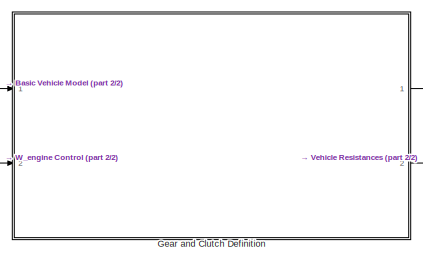
[diagram: root canvas - part 1/2, top right region]
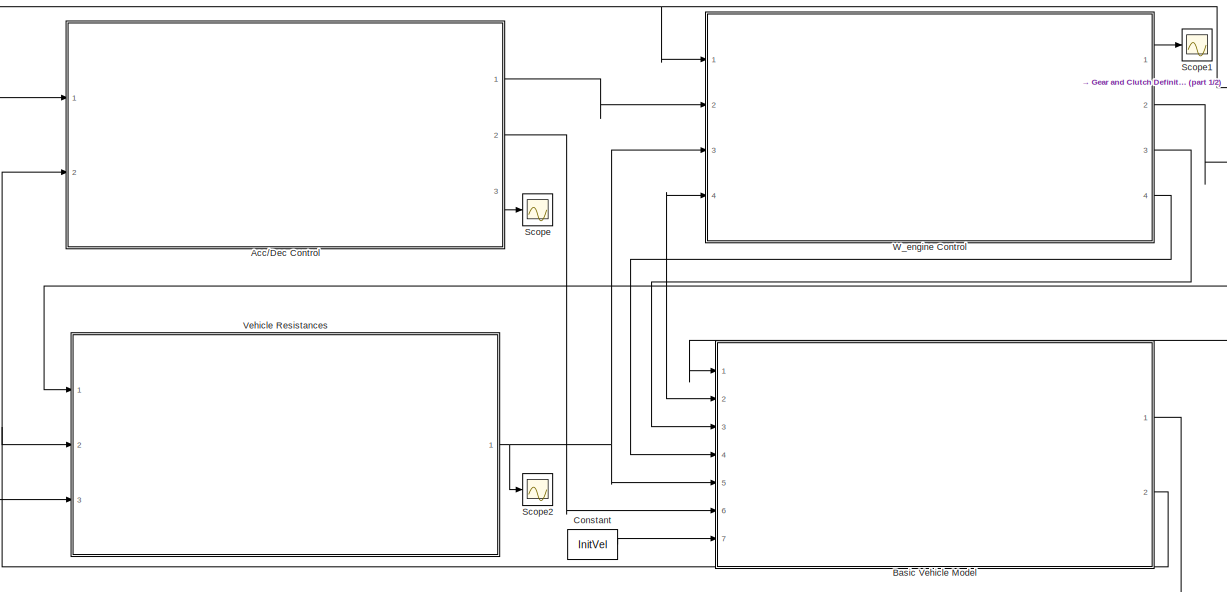
[diagram: root canvas - part 2/2, center side, full height]
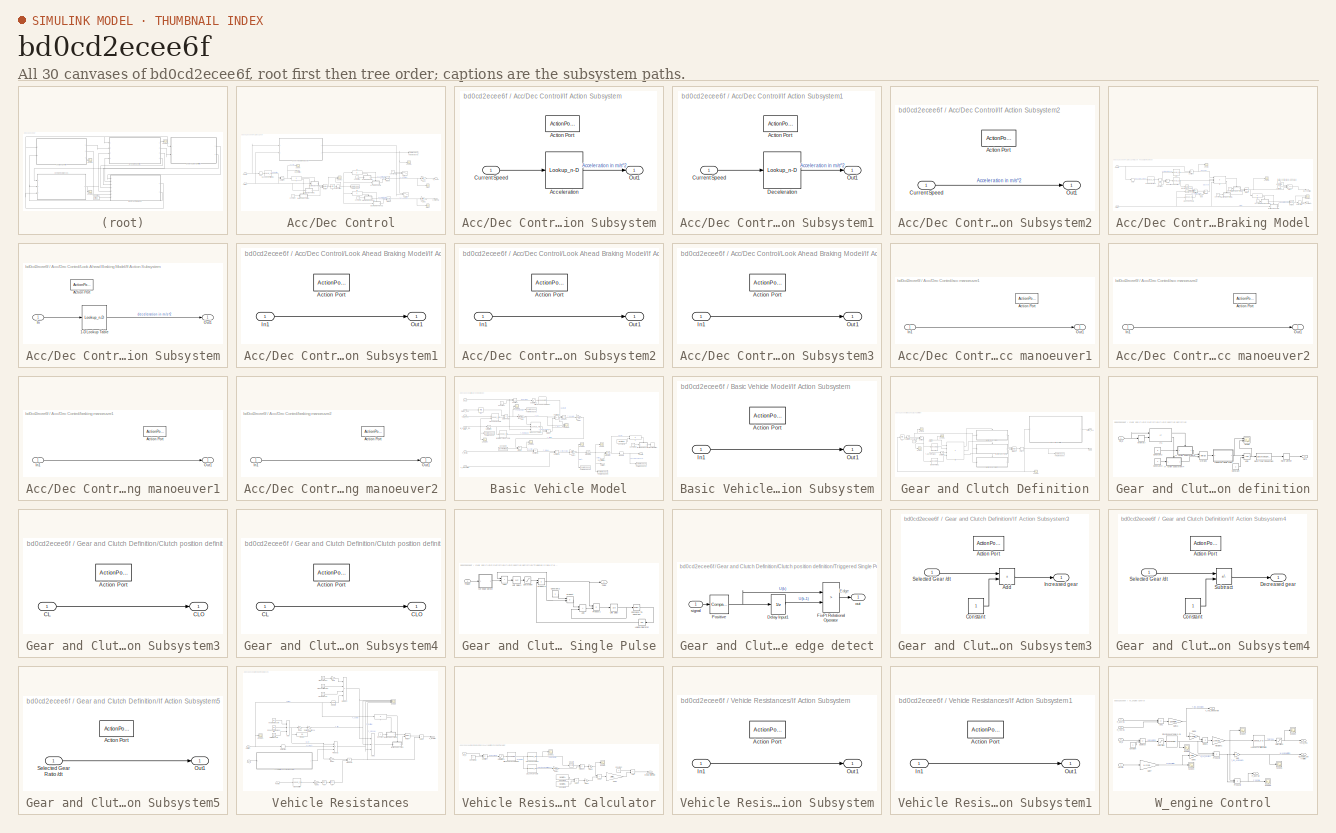
[diagram: thumbnail index - all 30 canvases of the model, root first then tree order]
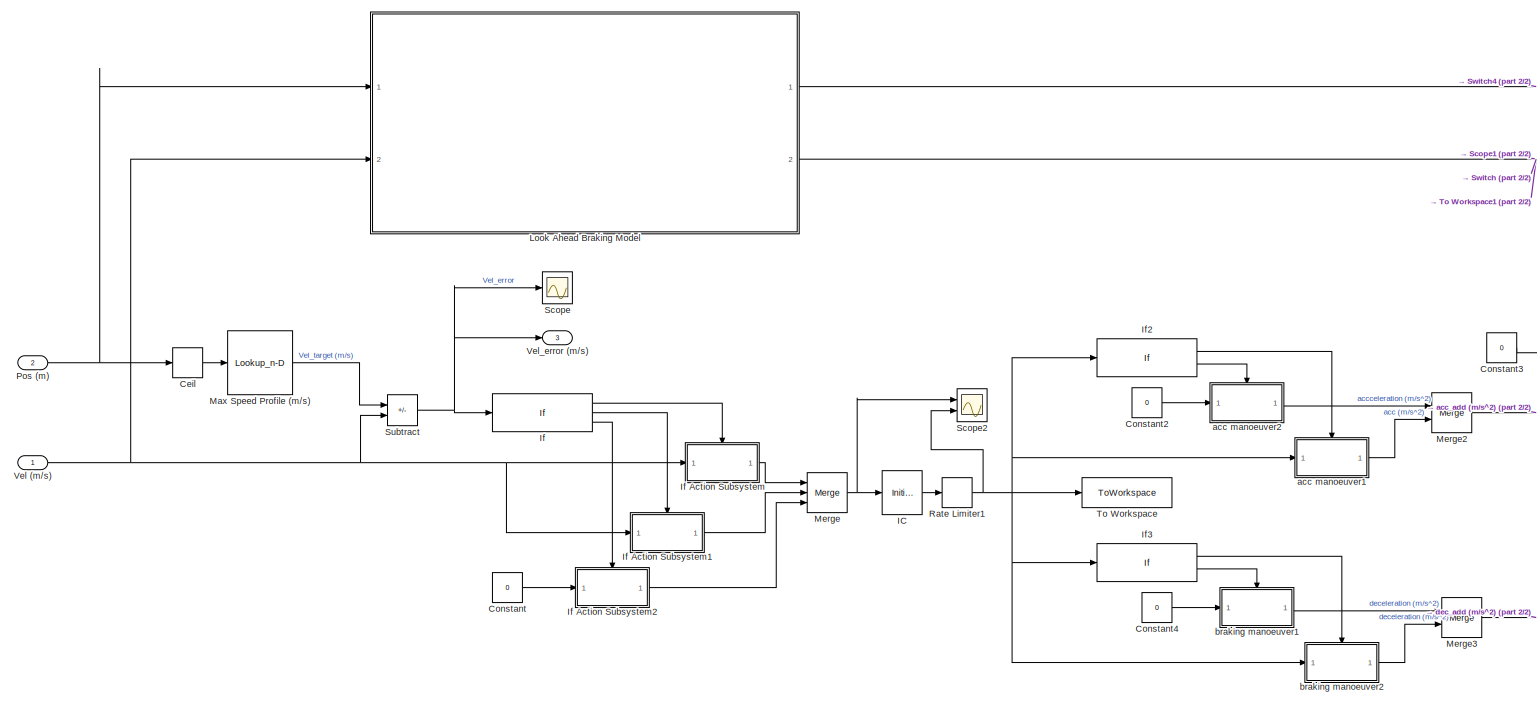
[diagram: Acc/Dec Control - part 1/2, most of the canvas]
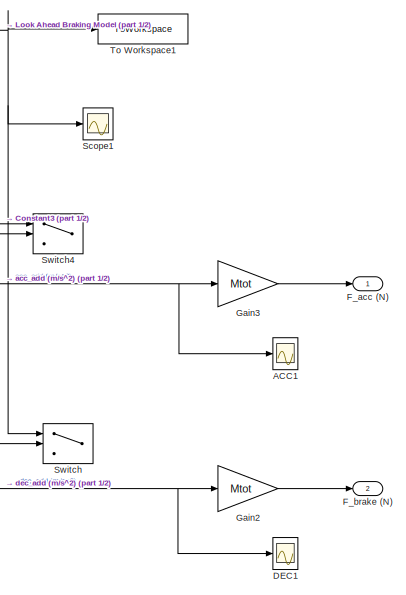
[diagram: Acc/Dec Control - part 2/2, right side, full height]
MODEL slx_bd0cd2ecee6f
KIND model
CONFIG AbsTol = auto
CONFIG EnableMultiTasking = off
CONFIG FixedStep = dt
CONFIG MaxStep = auto
CONFIG MinStep = auto
CONFIG RelTol = 1e-3
CONFIG SampleTimeConstraint = Unconstrained
CONFIG SolverName = FixedStepAuto
CONFIG StartTime = 0.0
CONFIG StopTime = 300
BLOCK [SubSystem] Acc//Dec Control
  Ports = [2, 3]
  RequestExecContextInheritance = off
BLOCK [Scope] Acc//Dec Control/ACC1
  Floating = off
  NumInputPorts = 1
  Ports = [1]
  ScopeSpecificationString = Simulink.scopes.TimeScopeBlockCfg('CurrentConfiguration', extmgr.ConfigurationSet(extmgr.Configuration('Core','General UI',true),extmgr.Configuration('Core','Source UI',true),extmgr.Configuration('Sources','WiredSimulink',true,'DataLoggingVariableName','ScopeData1'),extmgr.Configuration('Visuals','Time Domain',true,'SerializedDisplays',{struct('MinYLimReal','-0.125','MaxYLimReal','1.125','YLabelRe...<+1392ch>
BLOCK [Rounding] Acc//Dec Control/Ceil
  Operator = ceil
BLOCK [Constant] Acc//Dec Control/Constant
  Value = 0
BLOCK [Constant] Acc//Dec Control/Constant2
  Value = 0
BLOCK [Constant] Acc//Dec Control/Constant3
  Commented = on
  Value = 0
BLOCK [Constant] Acc//Dec Control/Constant4
  Value = 0
BLOCK [Scope] Acc//Dec Control/DEC1
  Floating = off
  NumInputPorts = 1
  Ports = [1]
  ScopeSpecificationString = Simulink.scopes.TimeScopeBlockCfg('CurrentConfiguration', extmgr.ConfigurationSet(extmgr.Configuration('Core','General UI',true),extmgr.Configuration('Core','Source UI',true),extmgr.Configuration('Sources','WiredSimulink',true,'DataLoggingVariableName','ScopeData2'),extmgr.Configuration('Visuals','Time Domain',true,'SerializedDisplays',{struct('MinYLimReal','-0.225','MaxYLimReal','0.025','YLabelRe...<+1391ch>
BLOCK [Outport] Acc//Dec Control/F_acc (N)
BLOCK [Outport] Acc//Dec Control/F_brake (N)
  Port = 2
BLOCK [Gain] Acc//Dec Control/Gain2
  Gain = Mtot
BLOCK [Gain] Acc//Dec Control/Gain3
  Gain = Mtot
BLOCK [InitialCondition] Acc//Dec Control/IC
  Value = 0
BLOCK [If] Acc//Dec Control/If
  ElseIfExpressions = u1 < 0
  Ports = [1, 3]
BLOCK [SubSystem] Acc//Dec Control/If Action Subsystem
  Ports = [1, 1, 0, 0, 0, 0, 0, 1]
  RequestExecContextInheritance = off
  TreatAsAtomicUnit = on
BLOCK [Lookup_n-D] Acc//Dec Control/If Action Subsystem/Acceleration
  BreakpointsForDimension1 = AccLim(:,1)
  InputPortMap = u0
  InternalRulePriority = Speed
  NumberOfTableDimensions = 1
  Ports = [1, 1]
  RndMeth = Simplest
  Table = AccLim(:,2)
BLOCK [ActionPort] Acc//Dec Control/If Action Subsystem/Action Port
  ActionPortLabel = if(u1 > 0)
BLOCK [Inport] Acc//Dec Control/If Action Subsystem/Current Speed
BLOCK [Outport] Acc//Dec Control/If Action Subsystem/Out1
BLOCK [SubSystem] Acc//Dec Control/If Action Subsystem1
  Ports = [1, 1, 0, 0, 0, 0, 0, 1]
  RequestExecContextInheritance = off
  TreatAsAtomicUnit = on
BLOCK [ActionPort] Acc//Dec Control/If Action Subsystem1/Action Port
  ActionPortLabel = elseif(u1 < 0)
BLOCK [Inport] Acc//Dec Control/If Action Subsystem1/Current Speed
BLOCK [Lookup_n-D] Acc//Dec Control/If Action Subsystem1/Deceleration
  BreakpointsForDimension1 = AccLim(:,1)
  InputPortMap = u0
  InternalRulePriority = Speed
  NumberOfTableDimensions = 1
  Ports = [1, 1]
  RndMeth = Simplest
  Table = AccLim(:,3)
BLOCK [Outport] Acc//Dec Control/If Action Subsystem1/Out1
BLOCK [SubSystem] Acc//Dec Control/If Action Subsystem2
  Ports = [1, 1, 0, 0, 0, 0, 0, 1]
  RequestExecContextInheritance = off
  TreatAsAtomicUnit = on
BLOCK [ActionPort] Acc//Dec Control/If Action Subsystem2/Action Port
  ActionPortLabel = else
BLOCK [Inport] Acc//Dec Control/If Action Subsystem2/Current Speed
BLOCK [Outport] Acc//Dec Control/If Action Subsystem2/Out1
BLOCK [If] Acc//Dec Control/If2
  Ports = [1, 2]
BLOCK [If] Acc//Dec Control/If3
  IfExpression = u1 < 0
  Ports = [1, 2]
BLOCK [SubSystem] Acc//Dec Control/Look Ahead Braking Model
  Commented = on
  Ports = [2, 2]
  RequestExecContextInheritance = off
BLOCK [Lookup_n-D] Acc//Dec Control/Look Ahead Braking Model/1-D Lookup Table
  BreakpointsForDimension1 = AccLim(:,1)
  InputPortMap = u0
  InternalRulePriority = Speed
  NumberOfTableDimensions = 1
  Ports = [1, 1]
  RndMeth = Simplest
  Table = AccLim(:,3)
BLOCK [Sum] Acc//Dec Control/Look Ahead Braking Model/Add3
  IconShape = rectangular
  Ports = [2, 1]
BLOCK [Rounding] Acc//Dec Control/Look Ahead Braking Model/Ceil
  Operator = ceil
BLOCK [Rounding] Acc//Dec Control/Look Ahead Braking Model/Ceil1
  Operator = ceil
BLOCK [Constant] Acc//Dec Control/Look Ahead Braking Model/Constant
BLOCK [Constant] Acc//Dec Control/Look Ahead Braking Model/Constant1
  Value = 0
BLOCK [Constant] Acc//Dec Control/Look Ahead Braking Model/Constant2
BLOCK [Constant] Acc//Dec Control/Look Ahead Braking Model/Constant3
  Value = 0
BLOCK [Constant] Acc//Dec Control/Look Ahead Braking Model/Constant5
  Value = 0
BLOCK [Outport] Acc//Dec Control/Look Ahead Braking Model/Dec_Override
BLOCK [Product] Acc//Dec Control/Look Ahead Braking Model/Divide
  Inputs = */
  Ports = [2, 1]
BLOCK [Gain] Acc//Dec Control/Look Ahead Braking Model/Gain
  Gain = 2
BLOCK [SubSystem] Acc//Dec Control/Look Ahead Braking Model/If Action Subsystem
  Ports = [1, 1, 0, 0, 0, 0, 0, 1]
  RequestExecContextInheritance = off
  TreatAsAtomicUnit = on
BLOCK [Lookup_n-D] Acc//Dec Control/Look Ahead Braking Model/If Action Subsystem/1-D Lookup Table
  BreakpointsForDimension1 = AccLim(:,1)
  InputPortMap = u0
  InternalRulePriority = Speed
  NumberOfTableDimensions = 1
  Ports = [1, 1]
  RndMeth = Simplest
  Table = AccLim(:,3)
BLOCK [ActionPort] Acc//Dec Control/Look Ahead Braking Model/If Action Subsystem/Action Port
BLOCK [Inport] Acc//Dec Control/Look Ahead Braking Model/If Action Subsystem/In
BLOCK [Outport] Acc//Dec Control/Look Ahead Braking Model/If Action Subsystem/Out1
BLOCK [SubSystem] Acc//Dec Control/Look Ahead Braking Model/If Action Subsystem1
  Ports = [1, 1, 0, 0, 0, 0, 0, 1]
  RequestExecContextInheritance = off
  TreatAsAtomicUnit = on
BLOCK [ActionPort] Acc//Dec Control/Look Ahead Braking Model/If Action Subsystem1/Action Port
BLOCK [Inport] Acc//Dec Control/Look Ahead Braking Model/If Action Subsystem1/In1
BLOCK [Outport] Acc//Dec Control/Look Ahead Braking Model/If Action Subsystem1/Out1
BLOCK [SubSystem] Acc//Dec Control/Look Ahead Braking Model/If Action Subsystem2
  Ports = [1, 1, 0, 0, 0, 0, 0, 1]
  RequestExecContextInheritance = off
  TreatAsAtomicUnit = on
BLOCK [ActionPort] Acc//Dec Control/Look Ahead Braking Model/If Action Subsystem2/Action Port
BLOCK [Inport] Acc//Dec Control/Look Ahead Braking Model/If Action Subsystem2/In1
BLOCK [Outport] Acc//Dec Control/Look Ahead Braking Model/If Action Subsystem2/Out1
BLOCK [SubSystem] Acc//Dec Control/Look Ahead Braking Model/If Action Subsystem3
  Ports = [1, 1, 0, 0, 0, 0, 0, 1]
  RequestExecContextInheritance = off
  TreatAsAtomicUnit = on
BLOCK [ActionPort] Acc//Dec Control/Look Ahead Braking Model/If Action Subsystem3/Action Port
BLOCK [Inport] Acc//Dec Control/Look Ahead Braking Model/If Action Subsystem3/In1
BLOCK [Outport] Acc//Dec Control/Look Ahead Braking Model/If Action Subsystem3/Out1
BLOCK [If] Acc//Dec Control/Look Ahead Braking Model/If1
  IfExpression = u1 <= u2 & u3 < u4
  NumInputs = 4
  Ports = [4, 2]
BLOCK [If] Acc//Dec Control/Look Ahead Braking Model/If2
  Ports = [1, 2]
BLOCK [Math] Acc//Dec Control/Look Ahead Braking Model/Magnitude Squared
  Operator = square
  Ports = [1, 1]
BLOCK [Math] Acc//Dec Control/Look Ahead Braking Model/Magnitude Squared1
  Operator = square
  Ports = [1, 1]
BLOCK [Merge] Acc//Dec Control/Look Ahead Braking Model/Merge
  Ports = [2, 1]
BLOCK [Merge] Acc//Dec Control/Look Ahead Braking Model/Merge1
  Ports = [2, 1]
BLOCK [Inport] Acc//Dec Control/Look Ahead Braking Model/Pos (m)
BLOCK [RateLimiter] Acc//Dec Control/Look Ahead Braking Model/Rate Limiter
  SampleTimeMode = inherited
BLOCK [Lookup_n-D] Acc//Dec Control/Look Ahead Braking Model/SCP
  BreakpointsForDimension1 = SegNo
  BreakpointsForDimension2 = G1Inprpm
  InputPortMap = u0
  InternalRulePriority = Speed
  InterpMethod = Linear Lagrange
  NumberOfTableDimensions = 1
  Ports = [1, 1]
  RndMeth = Simplest
  Table = CovDist
BLOCK [Scope] Acc//Dec Control/Look Ahead Braking Model/Scope
  Floating = off
  NumInputPorts = 1
  Ports = [1]
  ScopeSpecificationString = Simulink.scopes.TimeScopeBlockCfg('CurrentConfiguration', extmgr.ConfigurationSet(extmgr.Configuration('Core','General UI',true),extmgr.Configuration('Core','Source UI',true),extmgr.Configuration('Sources','WiredSimulink',true,'DataLoggingVariableName','ScopeData3'),extmgr.Configuration('Visuals','Time Domain',true,'SerializedDisplays',{struct('MinYLimReal','-28.00000','MaxYLimReal','252.00000','Y...<+1411ch>
BLOCK [Scope] Acc//Dec Control/Look Ahead Braking Model/Scope1
  Floating = off
  NumInputPorts = 2
  Ports = [2]
  ScopeSpecificationString = Simulink.scopes.TimeScopeBlockCfg('CurrentConfiguration', extmgr.ConfigurationSet(extmgr.Configuration('Core','General UI',true),extmgr.Configuration('Core','Source UI',true),extmgr.Configuration('Sources','WiredSimulink',true,'DataLoggingVariableName','ScopeData3'),extmgr.Configuration('Visuals','Time Domain',true,'SerializedDisplays',{struct('MinYLimReal','-1.125','MaxYLimReal','0.125','YLabelRe...<+1443ch>
BLOCK [Scope] Acc//Dec Control/Look Ahead Braking Model/Scope2
  Floating = off
  NumInputPorts = 1
  Ports = [1]
  ScopeSpecificationString = Simulink.scopes.TimeScopeBlockCfg('CurrentConfiguration', extmgr.ConfigurationSet(extmgr.Configuration('Core','General UI',true),extmgr.Configuration('Core','Source UI',true),extmgr.Configuration('Sources','WiredSimulink',true,'DataLoggingVariableName','ScopeData33'),extmgr.Configuration('Visuals','Time Domain',true,'SerializedDisplays',{struct('MinYLimReal','-0.125','MaxYLimReal','1.125','YLabelR...<+1353ch>
BLOCK [Lookup_n-D] Acc//Dec Control/Look Ahead Braking Model/Segment number
  BreakpointsForDimension1 = CovDist
  BreakpointsForDimension2 = G1Inprpm
  InputPortMap = u0
  InternalRulePriority = Speed
  InterpMethod = Linear Lagrange
  NumberOfTableDimensions = 1
  Ports = [1, 1]
  RndMeth = Simplest
  Table = SegNo
BLOCK [Sum] Acc//Dec Control/Look Ahead Braking Model/Subtract
  IconShape = rectangular
  Inputs = -+
  Ports = [2, 1]
BLOCK [Sum] Acc//Dec Control/Look Ahead Braking Model/Subtract1
  IconShape = rectangular
  Inputs = +-
  Ports = [2, 1]
BLOCK [Switch] Acc//Dec Control/Look Ahead Braking Model/Switch
  Criteria = u2 > Threshold
  InputSameDT = off
  SaturateOnIntegerOverflow = off
BLOCK [Inport] Acc//Dec Control/Look Ahead Braking Model/Vel (m//s)
  Port = 2
BLOCK [Constant] Acc//Dec Control/Look Ahead Braking Model/control val
  NameLocation = left
BLOCK [Outport] Acc//Dec Control/Look Ahead Braking Model/dec_add (m//s^2)
  Port = 2
BLOCK [Lookup_n-D] Acc//Dec Control/Look Ahead Braking Model/upcoming speed (m//s)
  BreakpointsForDimension1 = SegNo
  BreakpointsForDimension2 = G1Inprpm
  InputPortMap = u0
  InternalRulePriority = Speed
  InterpMethod = Linear Lagrange
  NumberOfTableDimensions = 1
  Ports = [1, 1]
  RndMeth = Simplest
  Table = SegSPLatinmps
BLOCK [Lookup_n-D] Acc//Dec Control/Max Speed Profile (m//s)
  BreakpointsForDimension1 = [1:length(MaxSpeedProfile)]
  BreakpointsForDimension2 = G1Inprpm
  InputPortMap = u0
  InternalRulePriority = Speed
  InterpMethod = Linear Lagrange
  NumberOfTableDimensions = 1
  Ports = [1, 1]
  RndMeth = Simplest
  Table = MaxSpeedProfile
BLOCK [Merge] Acc//Dec Control/Merge
  Inputs = 3
  Ports = [3, 1]
BLOCK [Merge] Acc//Dec Control/Merge2
  Ports = [2, 1]
BLOCK [Merge] Acc//Dec Control/Merge3
  Ports = [2, 1]
BLOCK [Inport] Acc//Dec Control/Pos (m)
  Port = 2
BLOCK [RateLimiter] Acc//Dec Control/Rate Limiter1
  RisingSlewLimit = 0.5
  SampleTimeMode = inherited
BLOCK [Scope] Acc//Dec Control/Scope
  Floating = off
  NumInputPorts = 1
  Ports = [1]
  ScopeSpecificationString = Simulink.scopes.TimeScopeBlockCfg('CurrentConfiguration', extmgr.ConfigurationSet(extmgr.Configuration('Core','General UI',true),extmgr.Configuration('Core','Source UI',true),extmgr.Configuration('Sources','WiredSimulink',true,'DataLoggingVariableName','ScopeData18'),extmgr.Configuration('Visuals','Time Domain',true,'SerializedDisplays',{struct('MinYLimReal','13.09283','MaxYLimReal','14.72696','YL...<+1394ch>
BLOCK [Scope] Acc//Dec Control/Scope1
  Commented = on
  Floating = off
  NumInputPorts = 1
  Ports = [1]
  ScopeSpecificationString = Simulink.scopes.TimeScopeBlockCfg('CurrentConfiguration', extmgr.ConfigurationSet(extmgr.Configuration('Core','General UI',true),extmgr.Configuration('Core','Source UI',true),extmgr.Configuration('Sources','WiredSimulink',true,'DataLoggingVariableName','ScopeData7'),extmgr.Configuration('Visuals','Time Domain',true,'SerializedDisplays',{struct('MinYLimReal','-1.125','MaxYLimReal','0.125','YLabelRe...<+1373ch>
BLOCK [Scope] Acc//Dec Control/Scope2
  Floating = off
  NumInputPorts = 2
  Ports = [2]
  ScopeSpecificationString = Simulink.scopes.TimeScopeBlockCfg('CurrentConfiguration', extmgr.ConfigurationSet(extmgr.Configuration('Core','General UI',true),extmgr.Configuration('Core','Source UI',true),extmgr.Configuration('Sources','WiredSimulink',true,'DataLoggingVariableName','ScopeData1'),extmgr.Configuration('Visuals','Time Domain',true,'SerializedDisplays',{struct('MinYLimReal','-1.25','MaxYLimReal','1.25','YLabelReal...<+1437ch>
BLOCK [Sum] Acc//Dec Control/Subtract
  IconShape = rectangular
  Inputs = +-
  Ports = [2, 1]
BLOCK [Switch] Acc//Dec Control/Switch
  Commented = on
  Criteria = u2 > Threshold
  InputSameDT = off
  SaturateOnIntegerOverflow = off
BLOCK [Switch] Acc//Dec Control/Switch4
  Commented = on
  Criteria = u2 > Threshold
  InputSameDT = off
  SaturateOnIntegerOverflow = off
BLOCK [ToWorkspace] Acc//Dec Control/To Workspace
  FixptAsFi = on
  MaxDataPoints = inf
  Ports = [1]
  SampleTime = -1
  SaveFormat = Timeseries
  VariableName = AccDec
BLOCK [ToWorkspace] Acc//Dec Control/To Workspace1
  Commented = on
  FixptAsFi = on
  MaxDataPoints = inf
  Ports = [1]
  SampleTime = -1
  SaveFormat = Timeseries
  VariableName = LAB
BLOCK [Inport] Acc//Dec Control/Vel (m//s)
BLOCK [Outport] Acc//Dec Control/Vel_error (m//s)
  Port = 3
BLOCK [SubSystem] Acc//Dec Control/acc manoeuver1
  Ports = [1, 1, 0, 0, 0, 0, 0, 1]
  RequestExecContextInheritance = off
  TreatAsAtomicUnit = on
BLOCK [ActionPort] Acc//Dec Control/acc manoeuver1/Action Port
  ActionPortLabel = if(u1 > 0)
BLOCK [Inport] Acc//Dec Control/acc manoeuver1/In1
BLOCK [Outport] Acc//Dec Control/acc manoeuver1/Out1
BLOCK [SubSystem] Acc//Dec Control/acc manoeuver2
  Ports = [1, 1, 0, 0, 0, 0, 0, 1]
  RequestExecContextInheritance = off
  TreatAsAtomicUnit = on
BLOCK [ActionPort] Acc//Dec Control/acc manoeuver2/Action Port
  ActionPortLabel = else
BLOCK [Inport] Acc//Dec Control/acc manoeuver2/In1
BLOCK [Outport] Acc//Dec Control/acc manoeuver2/Out1
BLOCK [SubSystem] Acc//Dec Control/braking manoeuver1
  Ports = [1, 1, 0, 0, 0, 0, 0, 1]
  RequestExecContextInheritance = off
  TreatAsAtomicUnit = on
BLOCK [ActionPort] Acc//Dec Control/braking manoeuver1/Action Port
  ActionPortLabel = else
BLOCK [Inport] Acc//Dec Control/braking manoeuver1/In1
BLOCK [Outport] Acc//Dec Control/braking manoeuver1/Out1
BLOCK [SubSystem] Acc//Dec Control/braking manoeuver2
  Ports = [1, 1, 0, 0, 0, 0, 0, 1]
  RequestExecContextInheritance = off
  TreatAsAtomicUnit = on
BLOCK [ActionPort] Acc//Dec Control/braking manoeuver2/Action Port
  ActionPortLabel = if(u1 < 0)
BLOCK [Inport] Acc//Dec Control/braking manoeuver2/In1
BLOCK [Outport] Acc//Dec Control/braking manoeuver2/Out1
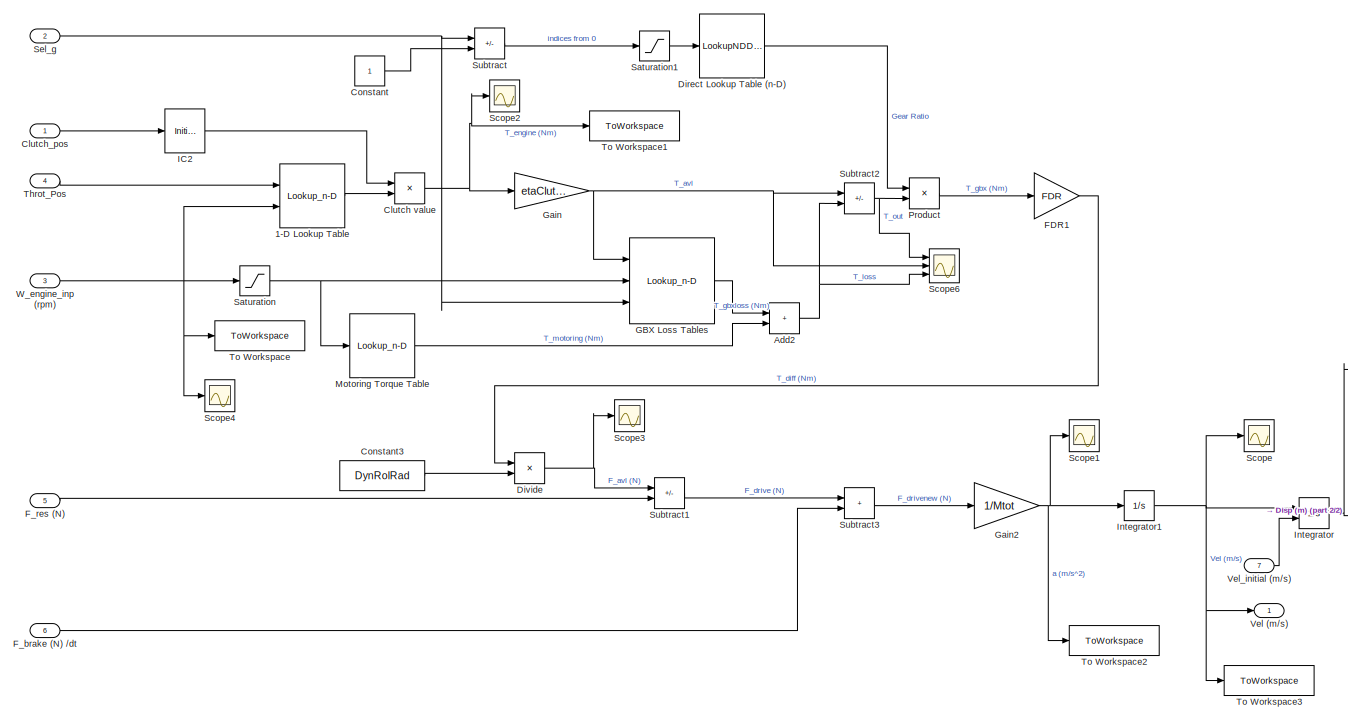
[diagram: Basic Vehicle Model - part 1/2, most of the canvas]
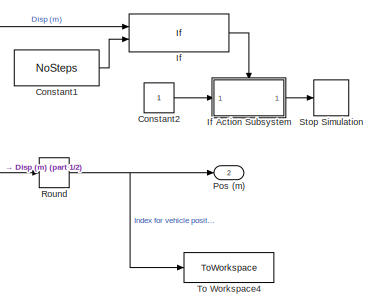
[diagram: Basic Vehicle Model - part 2/2, bottom right region]
BLOCK [SubSystem] Basic Vehicle Model
  Ports = [7, 2]
  RequestExecContextInheritance = off
BLOCK [Lookup_n-D] Basic Vehicle Model/1-D Lookup Table
  BreakpointsForDimension1 = ThrotPos
  BreakpointsForDimension2 = RpmBrkPnt
  InputPortMap = u0,u1
  InternalRulePriority = Speed
  Ports = [2, 1]
  RndMeth = Simplest
  Table = ThrotTableVal
BLOCK [Sum] Basic Vehicle Model/Add2
  IconShape = rectangular
  Ports = [2, 1]
BLOCK [Product] Basic Vehicle Model/Clutch value
  Ports = [2, 1]
BLOCK [Inport] Basic Vehicle Model/Clutch_pos
BLOCK [Constant] Basic Vehicle Model/Constant
BLOCK [Constant] Basic Vehicle Model/Constant1
  Value = NoSteps
BLOCK [Constant] Basic Vehicle Model/Constant2
BLOCK [Constant] Basic Vehicle Model/Constant3
  Value = DynRolRad
BLOCK [LookupNDDirect] Basic Vehicle Model/Direct Lookup Table (n-D)
  NumberOfTableDimensions = 1
  Ports = [1, 1]
  Table = GRa
BLOCK [Product] Basic Vehicle Model/Divide
  Inputs = */
  Ports = [2, 1]
BLOCK [Gain] Basic Vehicle Model/FDR1
  Gain = FDR
BLOCK [Inport] Basic Vehicle Model/F_brake (N) //dt
  Port = 6
BLOCK [Inport] Basic Vehicle Model/F_res (N)
  Port = 5
BLOCK [Lookup_n-D] Basic Vehicle Model/GBX Loss Tables
  BreakpointsForDimension1 = GInpTor
  BreakpointsForDimension2 = GInprpm
  BreakpointsForDimension3 = GearNo
  InputPortMap = u0,u1,u2
  InternalRulePriority = Speed
  InterpMethod = Linear Lagrange
  NumberOfTableDimensions = 3
  Ports = [3, 1]
  RndMeth = Simplest
  Table = GTorLoss
BLOCK [Gain] Basic Vehicle Model/Gain
  Gain = etaClutch
BLOCK [Gain] Basic Vehicle Model/Gain2
  Gain = 1/Mtot
BLOCK [InitialCondition] Basic Vehicle Model/IC2
BLOCK [If] Basic Vehicle Model/If
  IfExpression = u1 > u2
  NumInputs = 2
  Ports = [2, 1]
  ShowElse = off
BLOCK [SubSystem] Basic Vehicle Model/If Action Subsystem
  Ports = [1, 1, 0, 0, 0, 0, 0, 1]
  RequestExecContextInheritance = off
  TreatAsAtomicUnit = on
BLOCK [ActionPort] Basic Vehicle Model/If Action Subsystem/Action Port
  ActionPortLabel = if(u1 > u2)
BLOCK [Inport] Basic Vehicle Model/If Action Subsystem/In1
BLOCK [Outport] Basic Vehicle Model/If Action Subsystem/Out1
BLOCK [Integrator] Basic Vehicle Model/Integrator
  ContinuousStateAttributes = 'velocity'
  InitialConditionSource = external
  Ports = [2, 1]
BLOCK [Integrator] Basic Vehicle Model/Integrator1
  ContinuousStateAttributes = 'acceleration'
  Ports = [1, 1]
BLOCK [Lookup_n-D] Basic Vehicle Model/Motoring Torque Table
  BreakpointsForDimension1 = EngineRpm
  BreakpointsForDimension2 = G1Inprpm
  InputPortMap = u0
  InternalRulePriority = Speed
  InterpMethod = Linear Lagrange
  NumberOfTableDimensions = 1
  Ports = [1, 1]
  RndMeth = Simplest
  Table = MotoringTor
BLOCK [Outport] Basic Vehicle Model/Pos (m)
  Port = 2
BLOCK [Product] Basic Vehicle Model/Product
  Ports = [2, 1]
BLOCK [Rounding] Basic Vehicle Model/Round
  Operator = ceil
BLOCK [Saturate] Basic Vehicle Model/Saturation
  LowerLimit = 0
  UpperLimit = inf
BLOCK [Saturate] Basic Vehicle Model/Saturation1
  LowerLimit = 0
  UpperLimit = inf
BLOCK [Scope] Basic Vehicle Model/Scope
  Floating = off
  NumInputPorts = 1
  Ports = [1]
  ScopeSpecificationString = Simulink.scopes.TimeScopeBlockCfg('CurrentConfiguration', extmgr.ConfigurationSet(extmgr.Configuration('Core','General UI',true),extmgr.Configuration('Core','Source UI',true),extmgr.Configuration('Sources','WiredSimulink',true,'DataLoggingVariableName','ScopeData2'),extmgr.Configuration('Visuals','Time Domain',true,'SerializedDisplays',{struct('MinYLimReal','-0.09884','MaxYLimReal','-0.03335','YLa...<+1389ch>
BLOCK [Scope] Basic Vehicle Model/Scope1
  Floating = off
  NumInputPorts = 1
  Ports = [1]
  ScopeSpecificationString = Simulink.scopes.TimeScopeBlockCfg('CurrentConfiguration', extmgr.ConfigurationSet(extmgr.Configuration('Core','General UI',true),extmgr.Configuration('Core','Source UI',true),extmgr.Configuration('Sources','WiredSimulink',true,'DataLoggingVariableName','ScopeData3'),extmgr.Configuration('Visuals','Time Domain',true,'SerializedDisplays',{struct('MinYLimReal','-0.11638','MaxYLimReal','-0.02998','YLa...<+1416ch>
BLOCK [Scope] Basic Vehicle Model/Scope2
  Floating = off
  NumInputPorts = 1
  Ports = [1]
  ScopeSpecificationString = Simulink.scopes.TimeScopeBlockCfg('CurrentConfiguration', extmgr.ConfigurationSet(extmgr.Configuration('Core','General UI',true),extmgr.Configuration('Core','Source UI',true),extmgr.Configuration('Sources','WiredSimulink',true,'DataLoggingVariableName','ScopeData4'),extmgr.Configuration('Visuals','Time Domain',true,'SerializedDisplays',{struct('MinYLimReal','-25.78799','MaxYLimReal','232.09192','Y...<+1382ch>
BLOCK [Scope] Basic Vehicle Model/Scope3
  Floating = off
  NumInputPorts = 1
  Ports = [1]
  ScopeSpecificationString = Simulink.scopes.TimeScopeBlockCfg('CurrentConfiguration', extmgr.ConfigurationSet(extmgr.Configuration('Core','General UI',true),extmgr.Configuration('Core','Source UI',true),extmgr.Configuration('Sources','WiredSimulink',true,'DataLoggingVariableName','ScopeData5'),extmgr.Configuration('Visuals','Time Domain',true,'SerializedDisplays',{struct('MinYLimReal','-521.63787','MaxYLimReal','1495.34209',...<+1405ch>
BLOCK [Scope] Basic Vehicle Model/Scope4
  Floating = off
  NumInputPorts = 1
  Ports = [1]
  ScopeSpecificationString = Simulink.scopes.TimeScopeBlockCfg('CurrentConfiguration', extmgr.ConfigurationSet(extmgr.Configuration('Core','General UI',true),extmgr.Configuration('Core','Source UI',true),extmgr.Configuration('Sources','WiredSimulink',true,'DataLoggingVariableName','ScopeData6'),extmgr.Configuration('Visuals','Time Domain',true,'SerializedDisplays',{struct('MinYLimReal','-143.22715','MaxYLimReal','126.0272','Y...<+1400ch>
BLOCK [Scope] Basic Vehicle Model/Scope6
  Floating = off
  NumInputPorts = 3
  Ports = [3]
  ScopeSpecificationString = Simulink.scopes.TimeScopeBlockCfg('CurrentConfiguration', extmgr.ConfigurationSet(extmgr.Configuration('Core','General UI',true),extmgr.Configuration('Core','Source UI',true),extmgr.Configuration('Sources','WiredSimulink',true,'DataLoggingVariableName','ScopeData12'),extmgr.Configuration('Visuals','Time Domain',true,'SerializedDisplays',{struct('MinYLimReal','-12.9903','MaxYLimReal','262.87819','Y...<+1527ch>
BLOCK [Inport] Basic Vehicle Model/Sel_g
  Port = 2
BLOCK [Stop] Basic Vehicle Model/Stop Simulation
BLOCK [Sum] Basic Vehicle Model/Subtract
  IconShape = rectangular
  Inputs = +-
  Ports = [2, 1]
BLOCK [Sum] Basic Vehicle Model/Subtract1
  IconShape = rectangular
  Inputs = +-
  Ports = [2, 1]
BLOCK [Sum] Basic Vehicle Model/Subtract2
  IconShape = rectangular
  Inputs = +-
  Ports = [2, 1]
BLOCK [Sum] Basic Vehicle Model/Subtract3
  IconShape = rectangular
  Ports = [2, 1]
BLOCK [Inport] Basic Vehicle Model/Throt_Pos
  Port = 4
BLOCK [ToWorkspace] Basic Vehicle Model/To Workspace
  FixptAsFi = on
  MaxDataPoints = inf
  Ports = [1]
  SampleTime = -1
  SaveFormat = Timeseries
  VariableName = W_engine_inp
BLOCK [ToWorkspace] Basic Vehicle Model/To Workspace1
  FixptAsFi = on
  MaxDataPoints = inf
  Ports = [1]
  SampleTime = -1
  SaveFormat = Timeseries
  VariableName = T_req
BLOCK [ToWorkspace] Basic Vehicle Model/To Workspace2
  FixptAsFi = on
  MaxDataPoints = inf
  Ports = [1]
  SampleTime = -1
  SaveFormat = Timeseries
  VariableName = acc
BLOCK [ToWorkspace] Basic Vehicle Model/To Workspace3
  FixptAsFi = on
  MaxDataPoints = inf
  Ports = [1]
  SampleTime = -1
  SaveFormat = Timeseries
  VariableName = Vel
BLOCK [ToWorkspace] Basic Vehicle Model/To Workspace4
  FixptAsFi = on
  MaxDataPoints = inf
  Ports = [1]
  SampleTime = -1
  SaveFormat = Timeseries
  VariableName = Pos
BLOCK [Outport] Basic Vehicle Model/Vel (m//s)
BLOCK [Inport] Basic Vehicle Model/Vel_initial (m//s)
  Port = 7
BLOCK [Inport] Basic Vehicle Model/W_engine_inp (rpm)
  Port = 3
BLOCK [Constant] Constant
  Value = InitVel
BLOCK [SubSystem] Gear and Clutch Definition
  Ports = [2, 2]
  RequestExecContextInheritance = off
BLOCK [SubSystem] Gear and Clutch Definition/Clutch position definition
  Ports = [1, 1]
  RequestExecContextInheritance = off
BLOCK [Constant] Gear and Clutch Definition/Clutch position definition/Constant
BLOCK [Constant] Gear and Clutch Definition/Clutch position definition/Constant2
  Value = 0
BLOCK [Constant] Gear and Clutch Definition/Clutch position definition/Constant3
BLOCK [DataTypeConversion] Gear and Clutch Definition/Clutch position definition/Data Type Conversion
  OutDataTypeStr = double
  RndMeth = Floor
  SaturateOnIntegerOverflow = off
BLOCK [SubSystem] Gear and Clutch Definition/Clutch position definition/If Action Subsystem3
  Ports = [1, 1, 0, 0, 0, 0, 0, 1]
  RequestExecContextInheritance = off
  TreatAsAtomicUnit = on
BLOCK [ActionPort] Gear and Clutch Definition/Clutch position definition/If Action Subsystem3/Action Port
  ActionPortLabel = if(u1 == u2)
BLOCK [Inport] Gear and Clutch Definition/Clutch position definition/If Action Subsystem3/CL
BLOCK [Outport] Gear and Clutch Definition/Clutch position definition/If Action Subsystem3/CLO
BLOCK [SubSystem] Gear and Clutch Definition/Clutch position definition/If Action Subsystem4
  Ports = [1, 1, 0, 0, 0, 0, 0, 1]
  RequestExecContextInheritance = off
  TreatAsAtomicUnit = on
BLOCK [ActionPort] Gear and Clutch Definition/Clutch position definition/If Action Subsystem4/Action Port
  ActionPortLabel = else
BLOCK [Inport] Gear and Clutch Definition/Clutch position definition/If Action Subsystem4/CL
BLOCK [Outport] Gear and Clutch Definition/Clutch position definition/If Action Subsystem4/CLO
BLOCK [If] Gear and Clutch Definition/Clutch position definition/If1
  IfExpression = u1 == u2
  NumInputs = 2
  Ports = [2, 2]
BLOCK [Memory] Gear and Clutch Definition/Clutch position definition/Memory
BLOCK [Merge] Gear and Clutch Definition/Clutch position definition/Merge2
  Ports = [2, 1]
BLOCK [Outport] Gear and Clutch Definition/Clutch position definition/Out1
BLOCK [RateLimiter] Gear and Clutch Definition/Clutch position definition/Rate Limiter
  SampleTimeMode = inherited
BLOCK [Scope] Gear and Clutch Definition/Clutch position definition/Scope
  Floating = off
  NumInputPorts = 2
  Ports = [2]
  ScopeSpecificationString = Simulink.scopes.TimeScopeBlockCfg('CurrentConfiguration', extmgr.ConfigurationSet(extmgr.Configuration('Core','General UI',true),extmgr.Configuration('Core','Source UI',true),extmgr.Configuration('Sources','WiredSimulink',true,'DataLoggingVariableName','ScopeData4'),extmgr.Configuration('Visuals','Time Domain',true,'SerializedDisplays',{struct('MinYLimReal','-0.125','MaxYLimReal','1.125','YLabelRe...<+1375ch>
BLOCK [Inport] Gear and Clutch Definition/Clutch position definition/Sel_g
BLOCK [SubSystem] Gear and Clutch Definition/Clutch position definition/Triggered Single Pulse
  Ports = [1, 1]
  RequestExecContextInheritance = off
  TreatAsAtomicUnit = on
BLOCK [SubSystem] Gear and Clutch Definition/Clutch position definition/Triggered Single Pulse/+ve edge detect
  Ports = [1, 1]
  RequestExecContextInheritance = off
BLOCK [UnitDelay] Gear and Clutch Definition/Clutch position definition/Triggered Single Pulse/+ve edge detect/Delay Input1
  Description = Store in Global RAM
  DisableCoverage = on
  HasFrameUpgradeWarning = on
  SampleTime = -1
BLOCK [RelationalOperator] Gear and Clutch Definition/Clutch position definition/Triggered Single Pulse/+ve edge detect/FixPt Relational Operator
  InputSameDT = off
  Operator = >
  OutDataTypeStr = fixdt(0, 8)
  Ports = [2, 1]
  ZeroCross = off
BLOCK [Reference] Gear and Clutch Definition/Clutch position definition/Triggered Single Pulse/+ve edge detect/Positive  REF=simulink/Logic and Bit
Operations/Compare
To Zero
  Ports = [1, 1]
  SourceBlock = simulink/Logic and Bit\nOperations/Compare\nTo Zero
  SourceProductBaseCode = SL
  SourceType = Compare To Zero
BLOCK [Outport] Gear and Clutch Definition/Clutch position definition/Triggered Single Pulse/+ve edge detect/out
BLOCK [Inport] Gear and Clutch Definition/Clutch position definition/Triggered Single Pulse/+ve edge detect/signal
BLOCK [Sum] Gear and Clutch Definition/Clutch position definition/Triggered Single Pulse/Add
  IconShape = rectangular
  Ports = [2, 1]
BLOCK [Sum] Gear and Clutch Definition/Clutch position definition/Triggered Single Pulse/Add1
  IconShape = rectangular
  Ports = [2, 1]
BLOCK [Reference] Gear and Clutch Definition/Clutch position definition/Triggered Single Pulse/Compare To Constant  REF=simulink/Logic and Bit
Operations/Compare
To Constant
  Ports = [1, 1]
  SourceBlock = simulink/Logic and Bit\nOperations/Compare\nTo Constant
  SourceProductBaseCode = SL
  SourceType = Compare To Constant
BLOCK [Constant] Gear and Clutch Definition/Clutch position definition/Triggered Single Pulse/Constant2
BLOCK [Logic] Gear and Clutch Definition/Clutch position definition/Triggered Single Pulse/Logical Operator
  AllPortsSameDT = off
  Operator = NOT
  OutDataTypeStr = boolean
  Ports = [1, 1]
BLOCK [Product] Gear and Clutch Definition/Clutch position definition/Triggered Single Pulse/Product
  Ports = [2, 1]
  RndMeth = Zero
BLOCK [Product] Gear and Clutch Definition/Clutch position definition/Triggered Single Pulse/Product1
  Ports = [2, 1]
  RndMeth = Zero
BLOCK [Product] Gear and Clutch Definition/Clutch position definition/Triggered Single Pulse/Product3
  Ports = [2, 1]
  RndMeth = Zero
BLOCK [Outport] Gear and Clutch Definition/Clutch position definition/Triggered Single Pulse/Pulse
BLOCK [Saturate] Gear and Clutch Definition/Clutch position definition/Triggered Single Pulse/Saturation
  LowerLimit = 0
  UpperLimit = 1
BLOCK [Inport] Gear and Clutch Definition/Clutch position definition/Triggered Single Pulse/Trigger
BLOCK [UnitDelay] Gear and Clutch Definition/Clutch position definition/Triggered Single Pulse/Unit Delay
  HasFrameUpgradeWarning = on
  SampleTime = -1
BLOCK [UnitDelay] Gear and Clutch Definition/Clutch position definition/Triggered Single Pulse/Unit Delay1
  HasFrameUpgradeWarning = on
  SampleTime = -1
BLOCK [Logic] Gear and Clutch Definition/Clutch position definition/XOR
  AllPortsSameDT = off
  IconShape = distinctive
  Operator = XOR
  OutDataTypeStr = boolean
  Ports = [2, 1]
BLOCK [Outport] Gear and Clutch Definition/Clutch_pos
BLOCK [Constant] Gear and Clutch Definition/Constant1
BLOCK [Delay] Gear and Clutch Definition/Delay2
  DelayLength = 1
  InputPortMap = u0
  Ports = [1, 1]
BLOCK [InitialCondition] Gear and Clutch Definition/IC1
BLOCK [SubSystem] Gear and Clutch Definition/If Action Subsystem3
  Ports = [1, 1, 0, 0, 0, 0, 0, 1]
  RequestExecContextInheritance = off
  TreatAsAtomicUnit = on
BLOCK [ActionPort] Gear and Clutch Definition/If Action Subsystem3/Action Port
  ActionPortLabel = if(u1 >= u2 & u3 < u4)
BLOCK [Sum] Gear and Clutch Definition/If Action Subsystem3/Add
  IconShape = rectangular
  Ports = [2, 1]
BLOCK [Constant] Gear and Clutch Definition/If Action Subsystem3/Constant
BLOCK [Outport] Gear and Clutch Definition/If Action Subsystem3/Increased gear
BLOCK [Inport] Gear and Clutch Definition/If Action Subsystem3/Selected Gear //dt
BLOCK [SubSystem] Gear and Clutch Definition/If Action Subsystem4
  Ports = [1, 1, 0, 0, 0, 0, 0, 1]
  RequestExecContextInheritance = off
  TreatAsAtomicUnit = on
BLOCK [ActionPort] Gear and Clutch Definition/If Action Subsystem4/Action Port
  ActionPortLabel = elseif(u3 >= u4 & u1 < u2)
BLOCK [Constant] Gear and Clutch Definition/If Action Subsystem4/Constant
BLOCK [Outport] Gear and Clutch Definition/If Action Subsystem4/Decreased gear
BLOCK [Inport] Gear and Clutch Definition/If Action Subsystem4/Selected Gear //dt
BLOCK [Sum] Gear and Clutch Definition/If Action Subsystem4/Subtract
  IconShape = rectangular
  Inputs = +-
  Ports = [2, 1]
BLOCK [SubSystem] Gear and Clutch Definition/If Action Subsystem5
  Ports = [1, 1, 0, 0, 0, 0, 0, 1]
  RequestExecContextInheritance = off
  TreatAsAtomicUnit = on
BLOCK [ActionPort] Gear and Clutch Definition/If Action Subsystem5/Action Port
  ActionPortLabel = else
BLOCK [Outport] Gear and Clutch Definition/If Action Subsystem5/Out1
BLOCK [Inport] Gear and Clutch Definition/If Action Subsystem5/Selected Gear Ratio //dt
BLOCK [If] Gear and Clutch Definition/If1
  ElseIfExpressions = u3 >= u4 & u1 < u2
  IfExpression = u1 >= u2 & u3 < u4
  NumInputs = 4
  Ports = [4, 3]
BLOCK [LookupNDDirect] Gear and Clutch Definition/MaxSpinG1
  NumberOfTableDimensions = 1
  Ports = [1, 1]
  Table = MaxSpinG
BLOCK [LookupNDDirect] Gear and Clutch Definition/MaxWhlTorinG1
  NumberOfTableDimensions = 1
  Ports = [1, 1]
  Table = MaxWhlTorinG
BLOCK [Merge] Gear and Clutch Definition/Merge1
  Inputs = 3
  Ports = [3, 1]
BLOCK [Saturate] Gear and Clutch Definition/Saturation2
  LowerLimit = 0
  UpperLimit = max(GNo)
BLOCK [Saturate] Gear and Clutch Definition/Saturation3
  LowerLimit = 0
  UpperLimit = inf
BLOCK [Scope] Gear and Clutch Definition/Scope5
  Floating = off
  NumInputPorts = 1
  Ports = [1]
  ScopeSpecificationString = Simulink.scopes.TimeScopeBlockCfg('CurrentConfiguration', extmgr.ConfigurationSet(extmgr.Configuration('Core','General UI',true),extmgr.Configuration('Core','Source UI',true),extmgr.Configuration('Sources','WiredSimulink',true,'DataLoggingVariableName','ScopeData2'),extmgr.Configuration('Visuals','Time Domain',true,'SerializedDisplays',{struct('MinYLimReal','-0.5','MaxYLimReal','4.5','YLabelReal',...<+1371ch>
BLOCK [Scope] Gear and Clutch Definition/Scope6
  Floating = off
  NumInputPorts = 1
  Ports = [1]
  ScopeSpecificationString = Simulink.scopes.TimeScopeBlockCfg('CurrentConfiguration', extmgr.ConfigurationSet(extmgr.Configuration('Core','General UI',true),extmgr.Configuration('Core','Source UI',true),extmgr.Configuration('Sources','WiredSimulink',true,'DataLoggingVariableName','ScopeData3'),extmgr.Configuration('Visuals','Time Domain',true,'SerializedDisplays',{struct('MinYLimReal','-1.86223','MaxYLimReal','15.69968','YLa...<+1372ch>
BLOCK [Scope] Gear and Clutch Definition/Scope7
  Floating = off
  NumInputPorts = 1
  Ports = [1]
  ScopeSpecificationString = Simulink.scopes.TimeScopeBlockCfg('CurrentConfiguration', extmgr.ConfigurationSet(extmgr.Configuration('Core','General UI',true),extmgr.Configuration('Core','Source UI',true),extmgr.Configuration('Sources','WiredSimulink',true,'DataLoggingVariableName','ScopeData7'),extmgr.Configuration('Visuals','Time Domain',true,'SerializedDisplays',{struct('MinYLimReal','-0.375','MaxYLimReal','3.375','YLabelRe...<+1386ch>
BLOCK [Scope] Gear and Clutch Definition/Scope8
  Floating = off
  NumInputPorts = 1
  Ports = [1]
  ScopeSpecificationString = Simulink.scopes.TimeScopeBlockCfg('CurrentConfiguration', extmgr.ConfigurationSet(extmgr.Configuration('Core','General UI',true),extmgr.Configuration('Core','Source UI',true),extmgr.Configuration('Sources','WiredSimulink',true,'DataLoggingVariableName','ScopeData9'),extmgr.Configuration('Visuals','Time Domain',true,'SerializedDisplays',{struct('MinYLimReal','0.625','MaxYLimReal','4.375','YLabelRea...<+1381ch>
BLOCK [Outport] Gear and Clutch Definition/Sel_g
  Port = 2
BLOCK [Sum] Gear and Clutch Definition/Subtract1
  IconShape = rectangular
  Inputs = +-
  Ports = [2, 1]
BLOCK [Inport] Gear and Clutch Definition/T_req_wheel (Nm)
  Port = 2
BLOCK [ToWorkspace] Gear and Clutch Definition/To Workspace2
  FixptAsFi = on
  MaxDataPoints = inf
  Ports = [1]
  SampleTime = -1
  SaveFormat = Timeseries
  VariableName = Sel_g
BLOCK [Inport] Gear and Clutch Definition/Vel (m//s)
BLOCK [Scope] Scope
  Floating = off
  NumInputPorts = 1
  Ports = [1]
  ScopeSpecificationString = Simulink.scopes.TimeScopeBlockCfg('CurrentConfiguration', extmgr.ConfigurationSet(extmgr.Configuration('Core','General UI',true),extmgr.Configuration('Core','Source UI',true),extmgr.Configuration('Sources','WiredSimulink',true,'DataLoggingVariableName','ScopeData2'),extmgr.Configuration('Visuals','Time Domain',true,'SerializedDisplays',{struct('MinYLimReal','-1.78956','MaxYLimReal','15.72152','YLa...<+1388ch>
BLOCK [Scope] Scope1
  Floating = off
  NumInputPorts = 1
  Ports = [1]
  ScopeSpecificationString = Simulink.scopes.TimeScopeBlockCfg('CurrentConfiguration', extmgr.ConfigurationSet(extmgr.Configuration('Core','General UI',true),extmgr.Configuration('Core','Source UI',true),extmgr.Configuration('Sources','WiredSimulink',true,'DataLoggingVariableName','ScopeData1'),extmgr.Configuration('Visuals','Time Domain',true,'SerializedDisplays',{struct('MinYLimReal','-34.26759','MaxYLimReal','18.57548','YL...<+1410ch>
BLOCK [Scope] Scope2
  Floating = off
  NumInputPorts = 1
  Ports = [1]
  ScopeSpecificationString = Simulink.scopes.TimeScopeBlockCfg('CurrentConfiguration', extmgr.ConfigurationSet(extmgr.Configuration('Core','General UI',true),extmgr.Configuration('Core','Source UI',true),extmgr.Configuration('Sources','WiredSimulink',true,'DataLoggingVariableName','ScopeData7'),extmgr.Configuration('Visuals','Time Domain',true,'SerializedDisplays',{struct('MinYLimReal','-14.14914','MaxYLimReal','66.06312','YL...<+1403ch>
BLOCK [SubSystem] Vehicle Resistances
  Ports = [3, 1]
  RequestExecContextInheritance = off
BLOCK [SubSystem] Vehicle Resistances/Acceleration Constant Calculator
  Ports = [1, 1]
  RequestExecContextInheritance = off
BLOCK [Lookup_n-D] Vehicle Resistances/Acceleration Constant Calculator/1-D Lookup Table
  BreakpointsForDimension1 = GNo
  InputPortMap = u0
  InternalRulePriority = Speed
  NumberOfTableDimensions = 1
  Ports = [1, 1]
  RndMeth = Simplest
  Table = etaGRa
BLOCK [Lookup_n-D] Vehicle Resistances/Acceleration Constant Calculator/1-D Lookup Table1
  BreakpointsForDimension1 = GNo
  InputPortMap = u0
  InternalRulePriority = Speed
  NumberOfTableDimensions = 1
  Ports = [1, 1]
  RndMeth = Simplest
  Table = GRa
BLOCK [Sum] Vehicle Resistances/Acceleration Constant Calculator/Add
  IconShape = rectangular
  Ports = [2, 1]
BLOCK [Sum] Vehicle Resistances/Acceleration Constant Calculator/Add1
  IconShape = rectangular
  Ports = [2, 1]
BLOCK [Sum] Vehicle Resistances/Acceleration Constant Calculator/Add2
  IconShape = rectangular
  Ports = [2, 1]
BLOCK [Constant] Vehicle Resistances/Acceleration Constant Calculator/Constant
BLOCK [Constant] Vehicle Resistances/Acceleration Constant Calculator/Constant1
  Value = NoWhlFA
BLOCK [Constant] Vehicle Resistances/Acceleration Constant Calculator/Constant2
  Value = NoWhlRA
BLOCK [Constant] Vehicle Resistances/Acceleration Constant Calculator/Constant3
BLOCK [LookupNDDirect] Vehicle Resistances/Acceleration Constant Calculator/Direct Lookup Table (n-D)
  NumberOfTableDimensions = 1
  Ports = [1, 1]
  Table = GRa
BLOCK [Gain] Vehicle Resistances/Acceleration Constant Calculator/Gain3
  Gain = Jk
BLOCK [Gain] Vehicle Resistances/Acceleration Constant Calculator/Gain4
  Gain = 1/100
BLOCK [Gain] Vehicle Resistances/Acceleration Constant Calculator/Gain5
  Gain = Jm
BLOCK [Gain] Vehicle Resistances/Acceleration Constant Calculator/Gain6
  Gain = 1/(Mtot*DynRolRad)
BLOCK [Product] Vehicle Resistances/Acceleration Constant Calculator/Product
  Ports = [2, 1]
BLOCK [Saturate] Vehicle Resistances/Acceleration Constant Calculator/Saturation1
  LowerLimit = 0
  UpperLimit = inf
BLOCK [Scope] Vehicle Resistances/Acceleration Constant Calculator/Scope
  Floating = off
  NumInputPorts = 1
  Ports = [1]
  ScopeSpecificationString = Simulink.scopes.TimeScopeBlockCfg('CurrentConfiguration', extmgr.ConfigurationSet(extmgr.Configuration('Core','General UI',true),extmgr.Configuration('Core','Source UI',true),extmgr.Configuration('Sources','WiredSimulink',true,'DataLoggingVariableName','ScopeData9'),extmgr.Configuration('Visuals','Time Domain',true,'SerializedDisplays',{struct('MinYLimReal','-84.28361','MaxYLimReal','977.04485','Y...<+1374ch>
BLOCK [Scope] Vehicle Resistances/Acceleration Constant Calculator/Scope1
  Floating = off
  NumInputPorts = 1
  Ports = [1]
  ScopeSpecificationString = Simulink.scopes.TimeScopeBlockCfg('CurrentConfiguration', extmgr.ConfigurationSet(extmgr.Configuration('Core','General UI',true),extmgr.Configuration('Core','Source UI',true),extmgr.Configuration('Sources','WiredSimulink',true,'DataLoggingVariableName','ScopeData20'),extmgr.Configuration('Visuals','Time Domain',true,'SerializedDisplays',{struct('MinYLimReal','0.465','MaxYLimReal','10.615','YLabelR...<+1395ch>
BLOCK [Inport] Vehicle Resistances/Acceleration Constant Calculator/Sel_g
BLOCK [Math] Vehicle Resistances/Acceleration Constant Calculator/Square
  Operator = square
  Ports = [1, 1]
BLOCK [Sum] Vehicle Resistances/Acceleration Constant Calculator/Subtract
  IconShape = rectangular
  Inputs = +-
  Ports = [2, 1]
BLOCK [Outport] Vehicle Resistances/Acceleration Constant Calculator/acceleration resistance coefficient //dt
BLOCK [Sum] Vehicle Resistances/Add
  IconShape = rectangular
  Inputs = +++
  Ports = [3, 1]
BLOCK [Sum] Vehicle Resistances/Add1
  IconShape = rectangular
  Inputs = +++
  Ports = [3, 1]
BLOCK [Sum] Vehicle Resistances/Add2
  IconShape = rectangular
  Ports = [2, 1]
BLOCK [Constant] Vehicle Resistances/Air Density Rho
  Value = rho
BLOCK [Constant] Vehicle Resistances/Constant
  Value = 0
BLOCK [Derivative] Vehicle Resistances/Derivative
BLOCK [Display] Vehicle Resistances/Display
  Decimation = 1
  Ports = [1]
BLOCK [Constant] Vehicle Resistances/Drag Coefficient Cx
  Value = Cx
BLOCK [Constant] Vehicle Resistances/Expendable Mass Me
  Value = Me
BLOCK [Outport] Vehicle Resistances/F_res (N) //dt
BLOCK [Constant] Vehicle Resistances/Frontal Area Sx
  Value = Sx
BLOCK [Gain] Vehicle Resistances/Gain
  Gain = 1/2
BLOCK [Gain] Vehicle Resistances/Gain1
  Gain = g
BLOCK [Gain] Vehicle Resistances/Gain2
  Gain = g
BLOCK [Gain] Vehicle Resistances/Gain3
  Gain = 1/100
BLOCK [If] Vehicle Resistances/If
  Ports = [1, 2]
BLOCK [SubSystem] Vehicle Resistances/If Action Subsystem
  Ports = [1, 1, 0, 0, 0, 0, 0, 1]
  RequestExecContextInheritance = off
  TreatAsAtomicUnit = on
BLOCK [ActionPort] Vehicle Resistances/If Action Subsystem/Action Port
  ActionPortLabel = if(u1 > 0)
BLOCK [Inport] Vehicle Resistances/If Action Subsystem/In1
BLOCK [Outport] Vehicle Resistances/If Action Subsystem/Out1
BLOCK [SubSystem] Vehicle Resistances/If Action Subsystem1
  Ports = [1, 1, 0, 0, 0, 0, 0, 1]
  RequestExecContextInheritance = off
  TreatAsAtomicUnit = on
BLOCK [ActionPort] Vehicle Resistances/If Action Subsystem1/Action Port
  ActionPortLabel = else
BLOCK [Inport] Vehicle Resistances/If Action Subsystem1/In1
BLOCK [Outport] Vehicle Resistances/If Action Subsystem1/Out1
BLOCK [Merge] Vehicle Resistances/Merge
  Ports = [2, 1]
BLOCK [Inport] Vehicle Resistances/Pos (m)
  Port = 2
BLOCK [Product] Vehicle Resistances/Product
  Inputs = 4
  Ports = [4, 1]
BLOCK [Product] Vehicle Resistances/Product1
  Ports = [2, 1]
BLOCK [Product] Vehicle Resistances/Product2
  Inputs = 3
  Ports = [3, 1]
BLOCK [Gain] Vehicle Resistances/Rolling Resitance coeff
  Gain = Fr
BLOCK [Scope] Vehicle Resistances/Scope
  Floating = off
  NumInputPorts = 4
  Ports = [4]
  ScopeSpecificationString = Simulink.scopes.TimeScopeBlockCfg('CurrentConfiguration', extmgr.ConfigurationSet(extmgr.Configuration('Core','General UI',true),extmgr.Configuration('Core','Source UI',true),extmgr.Configuration('Sources','WiredSimulink',true,'DataLoggingVariableName','ScopeData16'),extmgr.Configuration('Visuals','Time Domain',true,'SerializedDisplays',{struct('MinYLimReal','-1377.9065','MaxYLimReal','2780.90077'...<+1547ch>
BLOCK [Scope] Vehicle Resistances/Scope1
  Floating = off
  NumInputPorts = 1
  Ports = [1]
  ScopeSpecificationString = Simulink.scopes.TimeScopeBlockCfg('CurrentConfiguration', extmgr.ConfigurationSet(extmgr.Configuration('Core','General UI',true),extmgr.Configuration('Core','Source UI',true),extmgr.Configuration('Sources','WiredSimulink',true,'DataLoggingVariableName','ScopeData10'),extmgr.Configuration('Visuals','Time Domain',true,'SerializedDisplays',{struct('MinYLimReal','-0.2306','MaxYLimReal','0.50154','YLab...<+1367ch>
BLOCK [Inport] Vehicle Resistances/Sel_g
BLOCK [Trigonometry] Vehicle Resistances/Sin
  Ports = [1, 1]
BLOCK [Lookup_n-D] Vehicle Resistances/Slope profile
  BreakpointsForDimension1 = 1: length(IntpSlope)
  InputPortMap = u0
  InternalRulePriority = Speed
  NumberOfTableDimensions = 1
  Ports = [1, 1]
  RndMeth = Simplest
  Table = IntpSlope
BLOCK [Math] Vehicle Resistances/Square
  Operator = square
  Ports = [1, 1]
BLOCK [Trigonometry] Vehicle Resistances/Tan
  Operator = atan
  Ports = [1, 1]
BLOCK [Constant] Vehicle Resistances/Trailer Mass Mt
  Value = Mt
BLOCK [Constant] Vehicle Resistances/Vehicle Mass Mv
  Value = Mv
BLOCK [Inport] Vehicle Resistances/Vel (m//s)
  Port = 3
BLOCK [SubSystem] W_engine Control
  Ports = [4, 4]
  RequestExecContextInheritance = off
BLOCK [Sum] W_engine Control/Add1
  IconShape = rectangular
  Inputs = +-
  Ports = [2, 1]
BLOCK [Constant] W_engine Control/Constant
BLOCK [LookupNDDirect] W_engine Control/Direct Lookup Table (n-D)
  NumberOfTableDimensions = 1
  Ports = [1, 1]
  Table = GRa
BLOCK [Product] W_engine Control/Divide1
  Inputs = */
  Ports = [2, 1]
BLOCK [Inport] W_engine Control/F_acc (N)
  Port = 2
BLOCK [Inport] W_engine Control/F_res (N)
  Port = 3
BLOCK [Gain] W_engine Control/Gain
  Gain = 60
BLOCK [Gain] W_engine Control/Gain11
  Gain = DynRolRad
BLOCK [Gain] W_engine Control/Gain6
  Gain = 1/FDR
BLOCK [Gain] W_engine Control/Gain7
  Gain = 1/(2*pi*DynRolRad)
BLOCK [Gain] W_engine Control/Gain8
  Gain = FDR
BLOCK [Lookup_n-D] W_engine Control/Lookup Throttle position
  BreakpointsForDimension1 = MaxTorValThrot
  InputPortMap = u0
  InternalRulePriority = Speed
  NumberOfTableDimensions = 1
  Ports = [1, 1]
  RndMeth = Simplest
  Table = ThrotPos
BLOCK [Outport] W_engine Control/P_gen (W)
BLOCK [Product] W_engine Control/Product2
  Ports = [2, 1]
BLOCK [Product] W_engine Control/Product3
  Ports = [2, 1]
BLOCK [Saturate] W_engine Control/Saturation
  LowerLimit = 0
  UpperLimit = inf
BLOCK [Saturate] W_engine Control/Saturation3
  LowerLimit = 0
  UpperLimit = 1
BLOCK [Scope] W_engine Control/Scope1
  Floating = off
  NumInputPorts = 1
  Ports = [1]
  ScopeSpecificationString = Simulink.scopes.TimeScopeBlockCfg('CurrentConfiguration', extmgr.ConfigurationSet(extmgr.Configuration('Core','General UI',true),extmgr.Configuration('Core','Source UI',true),extmgr.Configuration('Sources','WiredSimulink',true,'DataLoggingVariableName','ScopeData6'),extmgr.Configuration('Visuals','Time Domain',true,'SerializedDisplays',{struct('MinYLimReal','0.8275','MaxYLimReal','7.3525','YLabelR...<+1374ch>
BLOCK [Scope] W_engine Control/Scope2
  Floating = off
  NumInputPorts = 1
  Ports = [1]
  ScopeSpecificationString = Simulink.scopes.TimeScopeBlockCfg('CurrentConfiguration', extmgr.ConfigurationSet(extmgr.Configuration('Core','General UI',true),extmgr.Configuration('Core','Source UI',true),extmgr.Configuration('Sources','WiredSimulink',true,'DataLoggingVariableName','ScopeData5'),extmgr.Configuration('Visuals','Time Domain',true,'SerializedDisplays',{struct('MinYLimReal','-0.03637','MaxYLimReal','0.3273','YLabe...<+1366ch>
BLOCK [Scope] W_engine Control/Scope3
  Floating = off
  NumInputPorts = 1
  Ports = [1]
  ScopeSpecificationString = Simulink.scopes.TimeScopeBlockCfg('CurrentConfiguration', extmgr.ConfigurationSet(extmgr.Configuration('Core','General UI',true),extmgr.Configuration('Core','Source UI',true),extmgr.Configuration('Sources','WiredSimulink',true,'DataLoggingVariableName','ScopeData1'),extmgr.Configuration('Visuals','Time Domain',true,'SerializedDisplays',{struct('MinYLimReal','-0.01645','MaxYLimReal','-0.01035','YLa...<+1424ch>
BLOCK [Scope] W_engine Control/Scope4
  Floating = off
  NumInputPorts = 1
  Ports = [1]
  ScopeSpecificationString = Simulink.scopes.TimeScopeBlockCfg('CurrentConfiguration', extmgr.ConfigurationSet(extmgr.Configuration('Core','General UI',true),extmgr.Configuration('Core','Source UI',true),extmgr.Configuration('Sources','WiredSimulink',true,'DataLoggingVariableName','ScopeData16'),extmgr.Configuration('Visuals','Time Domain',true,'SerializedDisplays',{struct('MinYLimReal','-1.80503','MaxYLimReal','1.84857','YLa...<+1424ch>
BLOCK [Scope] W_engine Control/Scope5
  Floating = off
  NumInputPorts = 1
  Ports = [1]
  ScopeSpecificationString = Simulink.scopes.TimeScopeBlockCfg('CurrentConfiguration', extmgr.ConfigurationSet(extmgr.Configuration('Core','General UI',true),extmgr.Configuration('Core','Source UI',true),extmgr.Configuration('Sources','WiredSimulink',true,'DataLoggingVariableName','ScopeData8'),extmgr.Configuration('Visuals','Time Domain',true,'SerializedDisplays',{struct('MinYLimReal','-281.4986','MaxYLimReal','2051.64743','...<+1446ch>
BLOCK [Scope] W_engine Control/Scope6
  Floating = off
  NumInputPorts = 1
  Ports = [1]
  ScopeSpecificationString = Simulink.scopes.TimeScopeBlockCfg('CurrentConfiguration', extmgr.ConfigurationSet(extmgr.Configuration('Core','General UI',true),extmgr.Configuration('Core','Source UI',true),extmgr.Configuration('Sources','WiredSimulink',true,'DataLoggingVariableName','ScopeData20'),extmgr.Configuration('Visuals','Time Domain',true,'SerializedDisplays',{struct('MinYLimReal','-3322.20567','MaxYLimReal','6291.87968...<+1422ch>
BLOCK [Inport] W_engine Control/Sel_g
  Port = 4
BLOCK [Sum] W_engine Control/Subtract
  IconShape = rectangular
  Inputs = +-
  Ports = [2, 1]
BLOCK [Outport] W_engine Control/T_req_wheel (Nm)
  Port = 2
BLOCK [Outport] W_engine Control/Throt_Pos
  Port = 4
BLOCK [Inport] W_engine Control/Vel (m//s)
BLOCK [Outport] W_engine Control/W_engine_inp (rot//min)
  Port = 3
BLOCK [Gain] W_engine Control/etaClutch1
  Gain = 1/etaClutch
ANNOTATION Acc//Dec Control/Look Ahead Braking Model: If switch control val is 1: LAB Disabled If switch control val is 0: LAB enabled
ANNOTATION Gear and Clutch Definition/Clutch position definition/Triggered Single Pulse/+ve edge detect: Edge
LINE Acc//Dec Control/Ceil:1 -> Acc//Dec Control/Max Speed Profile (m//s):1
LINE Acc//Dec Control/Constant2:1 -> Acc//Dec Control/acc manoeuver2:1
LINE Acc//Dec Control/Constant3:1 -> Acc//Dec Control/Switch4:1
LINE Acc//Dec Control/Constant4:1 -> Acc//Dec Control/braking manoeuver1:1
LINE Acc//Dec Control/Constant:1 -> Acc//Dec Control/If Action Subsystem2:1
LINE Acc//Dec Control/Gain2:1 -> Acc//Dec Control/F_brake (N):1
LINE Acc//Dec Control/Gain3:1 -> Acc//Dec Control/F_acc (N):1
LINE Acc//Dec Control/IC:1 -> Acc//Dec Control/Rate Limiter1:1
LINE Acc//Dec Control/If Action Subsystem/Acceleration:1 -> Acc//Dec Control/If Action Subsystem/Out1:1
LINE Acc//Dec Control/If Action Subsystem/Current Speed:1 -> Acc//Dec Control/If Action Subsystem/Acceleration:1
LINE Acc//Dec Control/If Action Subsystem1/Current Speed:1 -> Acc//Dec Control/If Action Subsystem1/Deceleration:1
LINE Acc//Dec Control/If Action Subsystem1/Deceleration:1 -> Acc//Dec Control/If Action Subsystem1/Out1:1
LINE Acc//Dec Control/If Action Subsystem1:1 -> Acc//Dec Control/Merge:2
LINE Acc//Dec Control/If Action Subsystem2/Current Speed:1 -> Acc//Dec Control/If Action Subsystem2/Out1:1
LINE Acc//Dec Control/If Action Subsystem2:1 -> Acc//Dec Control/Merge:3
LINE Acc//Dec Control/If Action Subsystem:1 -> Acc//Dec Control/Merge:1
LINE Acc//Dec Control/If2:1 -> Acc//Dec Control/acc manoeuver1:ifaction
LINE Acc//Dec Control/If2:2 -> Acc//Dec Control/acc manoeuver2:ifaction
LINE Acc//Dec Control/If3:1 -> Acc//Dec Control/braking manoeuver2:ifaction
LINE Acc//Dec Control/If3:2 -> Acc//Dec Control/braking manoeuver1:ifaction
LINE Acc//Dec Control/If:1 -> Acc//Dec Control/If Action Subsystem:ifaction
LINE Acc//Dec Control/If:2 -> Acc//Dec Control/If Action Subsystem1:ifaction
LINE Acc//Dec Control/If:3 -> Acc//Dec Control/If Action Subsystem2:ifaction
LINE Acc//Dec Control/Look Ahead Braking Model/1-D Lookup Table:1 -> Acc//Dec Control/Look Ahead Braking Model/Gain:1
LINE Acc//Dec Control/Look Ahead Braking Model/Add3:1 -> Acc//Dec Control/Look Ahead Braking Model/upcoming speed (m//s):1
LINE Acc//Dec Control/Look Ahead Braking Model/Ceil1:1 -> Acc//Dec Control/Look Ahead Braking Model/Segment number:1
NET Acc//Dec Control/Look Ahead Braking Model/Ceil:1 -> Acc//Dec Control/Look Ahead Braking Model/Add3:1, Acc//Dec Control/Look Ahead Braking Model/SCP:1
LINE Acc//Dec Control/Look Ahead Braking Model/Constant1:1 -> Acc//Dec Control/Look Ahead Braking Model/If Action Subsystem1:1
LINE Acc//Dec Control/Look Ahead Braking Model/Constant2:1 -> Acc//Dec Control/Look Ahead Braking Model/If Action Subsystem2:1
LINE Acc//Dec Control/Look Ahead Braking Model/Constant3:1 -> Acc//Dec Control/Look Ahead Braking Model/If Action Subsystem3:1
LINE Acc//Dec Control/Look Ahead Braking Model/Constant5:1 -> Acc//Dec Control/Look Ahead Braking Model/Switch:1
LINE Acc//Dec Control/Look Ahead Braking Model/Constant:1 -> Acc//Dec Control/Look Ahead Braking Model/Add3:2
LINE Acc//Dec Control/Look Ahead Braking Model/Divide:1 -> Acc//Dec Control/Look Ahead Braking Model/If1:2
LINE Acc//Dec Control/Look Ahead Braking Model/Gain:1 -> Acc//Dec Control/Look Ahead Braking Model/Divide:2
LINE Acc//Dec Control/Look Ahead Braking Model/If Action Subsystem/1-D Lookup Table:1 -> Acc//Dec Control/Look Ahead Braking Model/If Action Subsystem/Out1:1
LINE Acc//Dec Control/Look Ahead Braking Model/If Action Subsystem/In:1 -> Acc//Dec Control/Look Ahead Braking Model/If Action Subsystem/1-D Lookup Table:1
LINE Acc//Dec Control/Look Ahead Braking Model/If Action Subsystem1/In1:1 -> Acc//Dec Control/Look Ahead Braking Model/If Action Subsystem1/Out1:1
LINE Acc//Dec Control/Look Ahead Braking Model/If Action Subsystem1:1 -> Acc//Dec Control/Look Ahead Braking Model/Merge:2
LINE Acc//Dec Control/Look Ahead Braking Model/If Action Subsystem2/In1:1 -> Acc//Dec Control/Look Ahead Braking Model/If Action Subsystem2/Out1:1
LINE Acc//Dec Control/Look Ahead Braking Model/If Action Subsystem2:1 -> Acc//Dec Control/Look Ahead Braking Model/Merge:1
LINE Acc//Dec Control/Look Ahead Braking Model/If Action Subsystem3/In1:1 -> Acc//Dec Control/Look Ahead Braking Model/If Action Subsystem3/Out1:1
LINE Acc//Dec Control/Look Ahead Braking Model/If Action Subsystem3:1 -> Acc//Dec Control/Look Ahead Braking Model/Merge1:1
LINE Acc//Dec Control/Look Ahead Braking Model/If Action Subsystem:1 -> Acc//Dec Control/Look Ahead Braking Model/Merge1:2
LINE Acc//Dec Control/Look Ahead Braking Model/If1:1 -> Acc//Dec Control/Look Ahead Braking Model/If Action Subsystem2:ifaction
LINE Acc//Dec Control/Look Ahead Braking Model/If1:2 -> Acc//Dec Control/Look Ahead Braking Model/If Action Subsystem1:ifaction
LINE Acc//Dec Control/Look Ahead Braking Model/If2:1 -> Acc//Dec Control/Look Ahead Braking Model/If Action Subsystem:ifaction
LINE Acc//Dec Control/Look Ahead Braking Model/If2:2 -> Acc//Dec Control/Look Ahead Braking Model/If Action Subsystem3:ifaction
LINE Acc//Dec Control/Look Ahead Braking Model/Magnitude Squared1:1 -> Acc//Dec Control/Look Ahead Braking Model/Subtract1:2
LINE Acc//Dec Control/Look Ahead Braking Model/Magnitude Squared:1 -> Acc//Dec Control/Look Ahead Braking Model/Subtract1:1
NET Acc//Dec Control/Look Ahead Braking Model/Merge1:1 -> Acc//Dec Control/Look Ahead Braking Model/Rate Limiter:1, Acc//Dec Control/Look Ahead Braking Model/Scope1:1
NET Acc//Dec Control/Look Ahead Braking Model/Merge:1 -> Acc//Dec Control/Look Ahead Braking Model/If2:1, Acc//Dec Control/Look Ahead Braking Model/Scope2:1, Acc//Dec Control/Look Ahead Braking Model/Switch:3
NET Acc//Dec Control/Look Ahead Braking Model/Pos (m):1 -> Acc//Dec Control/Look Ahead Braking Model/Ceil1:1, Acc//Dec Control/Look Ahead Braking Model/Subtract:1
NET Acc//Dec Control/Look Ahead Braking Model/Rate Limiter:1 -> Acc//Dec Control/Look Ahead Braking Model/Scope1:2, Acc//Dec Control/Look Ahead Braking Model/dec_add (m//s^2):1
LINE Acc//Dec Control/Look Ahead Braking Model/SCP:1 -> Acc//Dec Control/Look Ahead Braking Model/Subtract:2
LINE Acc//Dec Control/Look Ahead Braking Model/Segment number:1 -> Acc//Dec Control/Look Ahead Braking Model/Ceil:1
LINE Acc//Dec Control/Look Ahead Braking Model/Subtract1:1 -> Acc//Dec Control/Look Ahead Braking Model/Divide:1
NET Acc//Dec Control/Look Ahead Braking Model/Subtract:1 -> Acc//Dec Control/Look Ahead Braking Model/If1:1, Acc//Dec Control/Look Ahead Braking Model/Scope:1
LINE Acc//Dec Control/Look Ahead Braking Model/Switch:1 -> Acc//Dec Control/Look Ahead Braking Model/Dec_Override:1
NET Acc//Dec Control/Look Ahead Braking Model/Vel (m//s):1 -> Acc//Dec Control/Look Ahead Braking Model/1-D Lookup Table:1, Acc//Dec Control/Look Ahead Braking Model/If Action Subsystem:1, Acc//Dec Control/Look Ahead Braking Model/If1:4, Acc//Dec Control/Look Ahead Braking Model/Magnitude Squared1:1
LINE Acc//Dec Control/Look Ahead Braking Model/control val:1 -> Acc//Dec Control/Look Ahead Braking Model/Switch:2
NET Acc//Dec Control/Look Ahead Braking Model/upcoming speed (m//s):1 -> Acc//Dec Control/Look Ahead Braking Model/If1:3, Acc//Dec Control/Look Ahead Braking Model/Magnitude Squared:1
NET Acc//Dec Control/Look Ahead Braking Model:1 -> Acc//Dec Control/Switch4:2, Acc//Dec Control/Switch:2
NET Acc//Dec Control/Look Ahead Braking Model:2 -> Acc//Dec Control/Scope1:1, Acc//Dec Control/Switch:1, Acc//Dec Control/To Workspace1:1
LINE Acc//Dec Control/Max Speed Profile (m//s):1 -> Acc//Dec Control/Subtract:1
NET Acc//Dec Control/Merge2:1 -> Acc//Dec Control/ACC1:1, Acc//Dec Control/Gain3:1
NET Acc//Dec Control/Merge3:1 -> Acc//Dec Control/DEC1:1, Acc//Dec Control/Gain2:1
NET Acc//Dec Control/Merge:1 -> Acc//Dec Control/IC:1, Acc//Dec Control/Scope2:1
NET Acc//Dec Control/Pos (m):1 -> Acc//Dec Control/Ceil:1, Acc//Dec Control/Look Ahead Braking Model:1
NET Acc//Dec Control/Rate Limiter1:1 -> Acc//Dec Control/If2:1, Acc//Dec Control/If3:1, Acc//Dec Control/Scope2:2, Acc//Dec Control/To Workspace:1, Acc//Dec Control/acc manoeuver1:1, Acc//Dec Control/braking manoeuver2:1
NET Acc//Dec Control/Subtract:1 -> Acc//Dec Control/If:1, Acc//Dec Control/Scope:1, Acc//Dec Control/Vel_error (m//s):1
NET Acc//Dec Control/Vel (m//s):1 -> Acc//Dec Control/If Action Subsystem1:1, Acc//Dec Control/If Action Subsystem:1, Acc//Dec Control/Look Ahead Braking Model:2, Acc//Dec Control/Subtract:2
LINE Acc//Dec Control/acc manoeuver1/In1:1 -> Acc//Dec Control/acc manoeuver1/Out1:1
LINE Acc//Dec Control/acc manoeuver1:1 -> Acc//Dec Control/Merge2:2
LINE Acc//Dec Control/acc manoeuver2/In1:1 -> Acc//Dec Control/acc manoeuver2/Out1:1
LINE Acc//Dec Control/acc manoeuver2:1 -> Acc//Dec Control/Merge2:1
LINE Acc//Dec Control/braking manoeuver1/In1:1 -> Acc//Dec Control/braking manoeuver1/Out1:1
LINE Acc//Dec Control/braking manoeuver1:1 -> Acc//Dec Control/Merge3:1
LINE Acc//Dec Control/braking manoeuver2/In1:1 -> Acc//Dec Control/braking manoeuver2/Out1:1
LINE Acc//Dec Control/braking manoeuver2:1 -> Acc//Dec Control/Merge3:2
LINE Acc//Dec Control:1 -> W_engine Control:2
LINE Acc//Dec Control:2 -> Basic Vehicle Model:6
LINE Acc//Dec Control:3 -> Scope:1
LINE Basic Vehicle Model/1-D Lookup Table:1 -> Basic Vehicle Model/Clutch value:2
NET Basic Vehicle Model/Add2:1 -> Basic Vehicle Model/Scope6:3, Basic Vehicle Model/Subtract2:2
NET Basic Vehicle Model/Clutch value:1 -> Basic Vehicle Model/Gain:1, Basic Vehicle Model/Scope2:1, Basic Vehicle Model/To Workspace1:1
LINE Basic Vehicle Model/Clutch_pos:1 -> Basic Vehicle Model/IC2:1
LINE Basic Vehicle Model/Constant1:1 -> Basic Vehicle Model/If:2
LINE Basic Vehicle Model/Constant2:1 -> Basic Vehicle Model/If Action Subsystem:1
LINE Basic Vehicle Model/Constant3:1 -> Basic Vehicle Model/Divide:2
LINE Basic Vehicle Model/Constant:1 -> Basic Vehicle Model/Subtract:2
LINE Basic Vehicle Model/Direct Lookup Table (n-D):1 -> Basic Vehicle Model/Product:1
NET Basic Vehicle Model/Divide:1 -> Basic Vehicle Model/Scope3:1, Basic Vehicle Model/Subtract1:1
LINE Basic Vehicle Model/FDR1:1 -> Basic Vehicle Model/Divide:1
LINE Basic Vehicle Model/F_brake (N) //dt:1 -> Basic Vehicle Model/Subtract3:2
LINE Basic Vehicle Model/F_res (N):1 -> Basic Vehicle Model/Subtract1:2
LINE Basic Vehicle Model/GBX Loss Tables:1 -> Basic Vehicle Model/Add2:1
NET Basic Vehicle Model/Gain2:1 -> Basic Vehicle Model/Integrator1:1, Basic Vehicle Model/Scope1:1, Basic Vehicle Model/To Workspace2:1
NET Basic Vehicle Model/Gain:1 -> Basic Vehicle Model/GBX Loss Tables:1, Basic Vehicle Model/Scope6:2, Basic Vehicle Model/Subtract2:1
LINE Basic Vehicle Model/IC2:1 -> Basic Vehicle Model/Clutch value:1
LINE Basic Vehicle Model/If Action Subsystem/In1:1 -> Basic Vehicle Model/If Action Subsystem/Out1:1
LINE Basic Vehicle Model/If Action Subsystem:1 -> Basic Vehicle Model/Stop Simulation:1
LINE Basic Vehicle Model/If:1 -> Basic Vehicle Model/If Action Subsystem:ifaction
NET Basic Vehicle Model/Integrator1:1 -> Basic Vehicle Model/Integrator:1, Basic Vehicle Model/Scope:1, Basic Vehicle Model/To Workspace3:1, Basic Vehicle Model/Vel (m//s):1
NET Basic Vehicle Model/Integrator:1 -> Basic Vehicle Model/If:1, Basic Vehicle Model/Round:1
LINE Basic Vehicle Model/Motoring Torque Table:1 -> Basic Vehicle Model/Add2:2
LINE Basic Vehicle Model/Product:1 -> Basic Vehicle Model/FDR1:1
NET Basic Vehicle Model/Round:1 -> Basic Vehicle Model/Pos (m):1, Basic Vehicle Model/To Workspace4:1
LINE Basic Vehicle Model/Saturation1:1 -> Basic Vehicle Model/Direct Lookup Table (n-D):1
NET Basic Vehicle Model/Saturation:1 -> Basic Vehicle Model/GBX Loss Tables:2, Basic Vehicle Model/Motoring Torque Table:1
NET Basic Vehicle Model/Sel_g:1 -> Basic Vehicle Model/GBX Loss Tables:3, Basic Vehicle Model/Subtract:1
LINE Basic Vehicle Model/Subtract1:1 -> Basic Vehicle Model/Subtract3:1
NET Basic Vehicle Model/Subtract2:1 -> Basic Vehicle Model/Product:2, Basic Vehicle Model/Scope6:1
LINE Basic Vehicle Model/Subtract3:1 -> Basic Vehicle Model/Gain2:1
LINE Basic Vehicle Model/Subtract:1 -> Basic Vehicle Model/Saturation1:1
LINE Basic Vehicle Model/Throt_Pos:1 -> Basic Vehicle Model/1-D Lookup Table:1
LINE Basic Vehicle Model/Vel_initial (m//s):1 -> Basic Vehicle Model/Integrator:2
NET Basic Vehicle Model/W_engine_inp (rpm):1 -> Basic Vehicle Model/1-D Lookup Table:2, Basic Vehicle Model/Saturation:1, Basic Vehicle Model/Scope4:1, Basic Vehicle Model/To Workspace:1
NET Basic Vehicle Model:1 -> Acc//Dec Control:1, Gear and Clutch Definition:1, Vehicle Resistances:3, W_engine Control:1
NET Basic Vehicle Model:2 -> Acc//Dec Control:2, Vehicle Resistances:2
LINE Constant:1 -> Basic Vehicle Model:7
LINE Gear and Clutch Definition/Clutch position definition/Constant2:1 -> Gear and Clutch Definition/Clutch position definition/If Action Subsystem3:1
LINE Gear and Clutch Definition/Clutch position definition/Constant3:1 -> Gear and Clutch Definition/Clutch position definition/If Action Subsystem4:1
LINE Gear and Clutch Definition/Clutch position definition/Constant:1 -> Gear and Clutch Definition/Clutch position definition/XOR:2
LINE Gear and Clutch Definition/Clutch position definition/Data Type Conversion:1 -> Gear and Clutch Definition/Clutch position definition/Rate Limiter:1
LINE Gear and Clutch Definition/Clutch position definition/If Action Subsystem3/CL:1 -> Gear and Clutch Definition/Clutch position definition/If Action Subsystem3/CLO:1
LINE Gear and Clutch Definition/Clutch position definition/If Action Subsystem3:1 -> Gear and Clutch Definition/Clutch position definition/Merge2:1
LINE Gear and Clutch Definition/Clutch position definition/If Action Subsystem4/CL:1 -> Gear and Clutch Definition/Clutch position definition/If Action Subsystem4/CLO:1
LINE Gear and Clutch Definition/Clutch position definition/If Action Subsystem4:1 -> Gear and Clutch Definition/Clutch position definition/Merge2:2
LINE Gear and Clutch Definition/Clutch position definition/If1:1 -> Gear and Clutch Definition/Clutch position definition/If Action Subsystem3:ifaction
LINE Gear and Clutch Definition/Clutch position definition/If1:2 -> Gear and Clutch Definition/Clutch position definition/If Action Subsystem4:ifaction
LINE Gear and Clutch Definition/Clutch position definition/Memory:1 -> Gear and Clutch Definition/Clutch position definition/If1:2
LINE Gear and Clutch Definition/Clutch position definition/Merge2:1 -> Gear and Clutch Definition/Clutch position definition/Triggered Single Pulse:1
LINE Gear and Clutch Definition/Clutch position definition/Rate Limiter:1 -> Gear and Clutch Definition/Clutch position definition/Out1:1
NET Gear and Clutch Definition/Clutch position definition/Sel_g:1 -> Gear and Clutch Definition/Clutch position definition/If1:1, Gear and Clutch Definition/Clutch position definition/Memory:1
LINE Gear and Clutch Definition/Clutch position definition/Triggered Single Pulse/+ve edge detect/Delay Input1:1 -> Gear and Clutch Definition/Clutch position definition/Triggered Single Pulse/+ve edge detect/FixPt Relational Operator:2
LINE Gear and Clutch Definition/Clutch position definition/Triggered Single Pulse/+ve edge detect/FixPt Relational Operator:1 -> Gear and Clutch Definition/Clutch position definition/Triggered Single Pulse/+ve edge detect/out:1
NET Gear and Clutch Definition/Clutch position definition/Triggered Single Pulse/+ve edge detect/Positive:1 -> Gear and Clutch Definition/Clutch position definition/Triggered Single Pulse/+ve edge detect/Delay Input1:1, Gear and Clutch Definition/Clutch position definition/Triggered Single Pulse/+ve edge detect/FixPt Relational Operator:1
LINE Gear and Clutch Definition/Clutch position definition/Triggered Single Pulse/+ve edge detect/signal:1 -> Gear and Clutch Definition/Clutch position definition/Triggered Single Pulse/+ve edge detect/Positive:1
LINE Gear and Clutch Definition/Clutch position definition/Triggered Single Pulse/+ve edge detect:1 -> Gear and Clutch Definition/Clutch position definition/Triggered Single Pulse/Add1:2
LINE Gear and Clutch Definition/Clutch position definition/Triggered Single Pulse/Add1:1 -> Gear and Clutch Definition/Clutch position definition/Triggered Single Pulse/Unit Delay1:1
LINE Gear and Clutch Definition/Clutch position definition/Triggered Single Pulse/Add:1 -> Gear and Clutch Definition/Clutch position definition/Triggered Single Pulse/Product1:2
LINE Gear and Clutch Definition/Clutch position definition/Triggered Single Pulse/Compare To Constant:1 -> Gear and Clutch Definition/Clutch position definition/Triggered Single Pulse/Logical Operator:1
LINE Gear and Clutch Definition/Clutch position definition/Triggered Single Pulse/Constant2:1 -> Gear and Clutch Definition/Clutch position definition/Triggered Single Pulse/Product:1
LINE Gear and Clutch Definition/Clutch position definition/Triggered Single Pulse/Logical Operator:1 -> Gear and Clutch Definition/Clutch position definition/Triggered Single Pulse/Product3:2
LINE Gear and Clutch Definition/Clutch position definition/Triggered Single Pulse/Product1:1 -> Gear and Clutch Definition/Clutch position definition/Triggered Single Pulse/Unit Delay:1
NET Gear and Clutch Definition/Clutch position definition/Triggered Single Pulse/Product3:1 -> Gear and Clutch Definition/Clutch position definition/Triggered Single Pulse/Add1:1, Gear and Clutch Definition/Clutch position definition/Triggered Single Pulse/Product1:1, Gear and Clutch Definition/Clutch position definition/Triggered Single Pulse/Product:2, Gear and Clutch Definition/Clutch position definition/Triggered Single Pulse/Pulse:1
LINE Gear and Clutch Definition/Clutch position definition/Triggered Single Pulse/Product:1 -> Gear and Clutch Definition/Clutch position definition/Triggered Single Pulse/Add:1
LINE Gear and Clutch Definition/Clutch position definition/Triggered Single Pulse/Saturation:1 -> Gear and Clutch Definition/Clutch position definition/Triggered Single Pulse/Product3:1
LINE Gear and Clutch Definition/Clutch position definition/Triggered Single Pulse/Trigger:1 -> Gear and Clutch Definition/Clutch position definition/Triggered Single Pulse/+ve edge detect:1
LINE Gear and Clutch Definition/Clutch position definition/Triggered Single Pulse/Unit Delay1:1 -> Gear and Clutch Definition/Clutch position definition/Triggered Single Pulse/Saturation:1
NET Gear and Clutch Definition/Clutch position definition/Triggered Single Pulse/Unit Delay:1 -> Gear and Clutch Definition/Clutch position definition/Triggered Single Pulse/Add:2, Gear and Clutch Definition/Clutch position definition/Triggered Single Pulse/Compare To Constant:1
NET Gear and Clutch Definition/Clutch position definition/Triggered Single Pulse:1 -> Gear and Clutch Definition/Clutch position definition/Scope:1, Gear and Clutch Definition/Clutch position definition/XOR:1
NET Gear and Clutch Definition/Clutch position definition/XOR:1 -> Gear and Clutch Definition/Clutch position definition/Data Type Conversion:1, Gear and Clutch Definition/Clutch position definition/Scope:2
LINE Gear and Clutch Definition/Clutch position definition:1 -> Gear and Clutch Definition/Clutch_pos:1
LINE Gear and Clutch Definition/Constant1:1 -> Gear and Clutch Definition/Subtract1:2
NET Gear and Clutch Definition/Delay2:1 -> Gear and Clutch Definition/Clutch position definition:1, Gear and Clutch Definition/IC1:1, Gear and Clutch Definition/Scope5:1, Gear and Clutch Definition/Sel_g:1, Gear and Clutch Definition/To Workspace2:1
LINE Gear and Clutch Definition/IC1:1 -> Gear and Clutch Definition/Saturation2:1
LINE Gear and Clutch Definition/If Action Subsystem3/Add:1 -> Gear and Clutch Definition/If Action Subsystem3/Increased gear:1
LINE Gear and Clutch Definition/If Action Subsystem3/Constant:1 -> Gear and Clutch Definition/If Action Subsystem3/Add:2
LINE Gear and Clutch Definition/If Action Subsystem3/Selected Gear //dt:1 -> Gear and Clutch Definition/If Action Subsystem3/Add:1
LINE Gear and Clutch Definition/If Action Subsystem3:1 -> Gear and Clutch Definition/Merge1:1
LINE Gear and Clutch Definition/If Action Subsystem4/Constant:1 -> Gear and Clutch Definition/If Action Subsystem4/Subtract:2
LINE Gear and Clutch Definition/If Action Subsystem4/Selected Gear //dt:1 -> Gear and Clutch Definition/If Action Subsystem4/Subtract:1
LINE Gear and Clutch Definition/If Action Subsystem4/Subtract:1 -> Gear and Clutch Definition/If Action Subsystem4/Decreased gear:1
LINE Gear and Clutch Definition/If Action Subsystem4:1 -> Gear and Clutch Definition/Merge1:2
LINE Gear and Clutch Definition/If Action Subsystem5/Selected Gear Ratio //dt:1 -> Gear and Clutch Definition/If Action Subsystem5/Out1:1
LINE Gear and Clutch Definition/If Action Subsystem5:1 -> Gear and Clutch Definition/Merge1:3
LINE Gear and Clutch Definition/If1:1 -> Gear and Clutch Definition/If Action Subsystem3:ifaction
LINE Gear and Clutch Definition/If1:2 -> Gear and Clutch Definition/If Action Subsystem4:ifaction
LINE Gear and Clutch Definition/If1:3 -> Gear and Clutch Definition/If Action Subsystem5:ifaction
LINE Gear and Clutch Definition/MaxSpinG1:1 -> Gear and Clutch Definition/If1:2
LINE Gear and Clutch Definition/MaxWhlTorinG1:1 -> Gear and Clutch Definition/If1:4
LINE Gear and Clutch Definition/Merge1:1 -> Gear and Clutch Definition/Delay2:1
NET Gear and Clutch Definition/Saturation2:1 -> Gear and Clutch Definition/If Action Subsystem3:1, Gear and Clutch Definition/If Action Subsystem4:1, Gear and Clutch Definition/If Action Subsystem5:1, Gear and Clutch Definition/Scope8:1, Gear and Clutch Definition/Subtract1:1
LINE Gear and Clutch Definition/Saturation3:1 -> Gear and Clutch Definition/If1:3
NET Gear and Clutch Definition/Subtract1:1 -> Gear and Clutch Definition/MaxSpinG1:1, Gear and Clutch Definition/MaxWhlTorinG1:1, Gear and Clutch Definition/Scope7:1
LINE Gear and Clutch Definition/T_req_wheel (Nm):1 -> Gear and Clutch Definition/Saturation3:1
NET Gear and Clutch Definition/Vel (m//s):1 -> Gear and Clutch Definition/If1:1, Gear and Clutch Definition/Scope6:1
LINE Gear and Clutch Definition:1 -> Basic Vehicle Model:1
NET Gear and Clutch Definition:2 -> Basic Vehicle Model:2, Vehicle Resistances:1, W_engine Control:4
NET Vehicle Resistances/Acceleration Constant Calculator/1-D Lookup Table1:1 -> Vehicle Resistances/Acceleration Constant Calculator/Scope1:1, Vehicle Resistances/Acceleration Constant Calculator/Square:1
LINE Vehicle Resistances/Acceleration Constant Calculator/1-D Lookup Table:1 -> Vehicle Resistances/Acceleration Constant Calculator/Gain4:1
LINE Vehicle Resistances/Acceleration Constant Calculator/Add1:1 -> Vehicle Resistances/Acceleration Constant Calculator/Gain3:1
LINE Vehicle Resistances/Acceleration Constant Calculator/Add2:1 -> Vehicle Resistances/Acceleration Constant Calculator/Gain6:1
LINE Vehicle Resistances/Acceleration Constant Calculator/Add:1 -> Vehicle Resistances/Acceleration Constant Calculator/acceleration resistance coefficient //dt:1
LINE Vehicle Resistances/Acceleration Constant Calculator/Constant1:1 -> Vehicle Resistances/Acceleration Constant Calculator/Add1:1
LINE Vehicle Resistances/Acceleration Constant Calculator/Constant2:1 -> Vehicle Resistances/Acceleration Constant Calculator/Add1:2
LINE Vehicle Resistances/Acceleration Constant Calculator/Constant3:1 -> Vehicle Resistances/Acceleration Constant Calculator/Subtract:2
LINE Vehicle Resistances/Acceleration Constant Calculator/Constant:1 -> Vehicle Resistances/Acceleration Constant Calculator/Add:1
NET Vehicle Resistances/Acceleration Constant Calculator/Direct Lookup Table (n-D):1 -> Vehicle Resistances/Acceleration Constant Calculator/1-D Lookup Table1:1, Vehicle Resistances/Acceleration Constant Calculator/1-D Lookup Table:1
LINE Vehicle Resistances/Acceleration Constant Calculator/Gain3:1 -> Vehicle Resistances/Acceleration Constant Calculator/Add2:2
LINE Vehicle Resistances/Acceleration Constant Calculator/Gain4:1 -> Vehicle Resistances/Acceleration Constant Calculator/Product:2
NET Vehicle Resistances/Acceleration Constant Calculator/Gain5:1 -> Vehicle Resistances/Acceleration Constant Calculator/Add2:1, Vehicle Resistances/Acceleration Constant Calculator/Scope:1
LINE Vehicle Resistances/Acceleration Constant Calculator/Gain6:1 -> Vehicle Resistances/Acceleration Constant Calculator/Add:2
LINE Vehicle Resistances/Acceleration Constant Calculator/Product:1 -> Vehicle Resistances/Acceleration Constant Calculator/Gain5:1
LINE Vehicle Resistances/Acceleration Constant Calculator/Saturation1:1 -> Vehicle Resistances/Acceleration Constant Calculator/Direct Lookup Table (n-D):1
LINE Vehicle Resistances/Acceleration Constant Calculator/Sel_g:1 -> Vehicle Resistances/Acceleration Constant Calculator/Subtract:1
LINE Vehicle Resistances/Acceleration Constant Calculator/Square:1 -> Vehicle Resistances/Acceleration Constant Calculator/Product:1
LINE Vehicle Resistances/Acceleration Constant Calculator/Subtract:1 -> Vehicle Resistances/Acceleration Constant Calculator/Saturation1:1
LINE Vehicle Resistances/Acceleration Constant Calculator:1 -> Vehicle Resistances/Product2:3
LINE Vehicle Resistances/Add1:1 -> Vehicle Resistances/If Action Subsystem:1
LINE Vehicle Resistances/Add2:1 -> Vehicle Resistances/F_res (N) //dt:1
NET Vehicle Resistances/Add:1 -> Vehicle Resistances/Display:1, Vehicle Resistances/Gain1:1, Vehicle Resistances/Gain2:1, Vehicle Resistances/Product2:1
LINE Vehicle Resistances/Air Density Rho:1 -> Vehicle Resistances/Gain:1
LINE Vehicle Resistances/Constant:1 -> Vehicle Resistances/If Action Subsystem1:1
LINE Vehicle Resistances/Derivative:1 -> Vehicle Resistances/Product2:2
LINE Vehicle Resistances/Drag Coefficient Cx:1 -> Vehicle Resistances/Product:2
LINE Vehicle Resistances/Expendable Mass Me:1 -> Vehicle Resistances/Add:2
LINE Vehicle Resistances/Frontal Area Sx:1 -> Vehicle Resistances/Product:3
LINE Vehicle Resistances/Gain1:1 -> Vehicle Resistances/Rolling Resitance coeff:1
LINE Vehicle Resistances/Gain2:1 -> Vehicle Resistances/Product1:1
LINE Vehicle Resistances/Gain3:1 -> Vehicle Resistances/Tan:1
LINE Vehicle Resistances/Gain:1 -> Vehicle Resistances/Product:1
LINE Vehicle Resistances/If Action Subsystem/In1:1 -> Vehicle Resistances/If Action Subsystem/Out1:1
LINE Vehicle Resistances/If Action Subsystem1/In1:1 -> Vehicle Resistances/If Action Subsystem1/Out1:1
LINE Vehicle Resistances/If Action Subsystem1:1 -> Vehicle Resistances/Merge:1
LINE Vehicle Resistances/If Action Subsystem:1 -> Vehicle Resistances/Merge:2
LINE Vehicle Resistances/If:1 -> Vehicle Resistances/If Action Subsystem:ifaction
LINE Vehicle Resistances/If:2 -> Vehicle Resistances/If Action Subsystem1:ifaction
LINE Vehicle Resistances/Merge:1 -> Vehicle Resistances/Add2:1
LINE Vehicle Resistances/Pos (m):1 -> Vehicle Resistances/Slope profile:1
NET Vehicle Resistances/Product1:1 -> Vehicle Resistances/Add2:2, Vehicle Resistances/Scope:4
NET Vehicle Resistances/Product2:1 -> Vehicle Resistances/Add1:3, Vehicle Resistances/Scope:3
NET Vehicle Resistances/Product:1 -> Vehicle Resistances/Add1:1, Vehicle Resistances/Scope:1
NET Vehicle Resistances/Rolling Resitance coeff:1 -> Vehicle Resistances/Add1:2, Vehicle Resistances/Scope:2
LINE Vehicle Resistances/Sel_g:1 -> Vehicle Resistances/Acceleration Constant Calculator:1
LINE Vehicle Resistances/Sin:1 -> Vehicle Resistances/Product1:2
LINE Vehicle Resistances/Slope profile:1 -> Vehicle Resistances/Gain3:1
LINE Vehicle Resistances/Square:1 -> Vehicle Resistances/Product:4
LINE Vehicle Resistances/Tan:1 -> Vehicle Resistances/Sin:1
LINE Vehicle Resistances/Trailer Mass Mt:1 -> Vehicle Resistances/Add:3
LINE Vehicle Resistances/Vehicle Mass Mv:1 -> Vehicle Resistances/Add:1
NET Vehicle Resistances/Vel (m//s):1 -> Vehicle Resistances/Derivative:1, Vehicle Resistances/If:1, Vehicle Resistances/Scope1:1, Vehicle Resistances/Square:1
NET Vehicle Resistances:1 -> Basic Vehicle Model:5, Scope2:1, W_engine Control:3
LINE W_engine Control/Add1:1 -> W_engine Control/Gain11:1
LINE W_engine Control/Constant:1 -> W_engine Control/Subtract:2
NET W_engine Control/Direct Lookup Table (n-D):1 -> W_engine Control/Divide1:2, W_engine Control/Product3:1, W_engine Control/Scope1:1
LINE W_engine Control/Divide1:1 -> W_engine Control/etaClutch1:1
LINE W_engine Control/F_acc (N):1 -> W_engine Control/Add1:1
LINE W_engine Control/F_res (N):1 -> W_engine Control/Add1:2
NET W_engine Control/Gain11:1 -> W_engine Control/Gain6:1, W_engine Control/T_req_wheel (Nm):1
LINE W_engine Control/Gain6:1 -> W_engine Control/Divide1:1
NET W_engine Control/Gain7:1 -> W_engine Control/Gain8:1, W_engine Control/Scope3:1
LINE W_engine Control/Gain8:1 -> W_engine Control/Product3:2
NET W_engine Control/Gain:1 -> W_engine Control/Scope5:1, W_engine Control/W_engine_inp (rot//min):1
LINE W_engine Control/Lookup Throttle position:1 -> W_engine Control/Saturation3:1
NET W_engine Control/Product2:1 -> W_engine Control/P_gen (W):1, W_engine Control/Scope6:1
NET W_engine Control/Product3:1 -> W_engine Control/Gain:1, W_engine Control/Product2:2
NET W_engine Control/Saturation3:1 -> W_engine Control/Scope2:1, W_engine Control/Throt_Pos:1
LINE W_engine Control/Saturation:1 -> W_engine Control/Direct Lookup Table (n-D):1
LINE W_engine Control/Sel_g:1 -> W_engine Control/Subtract:1
LINE W_engine Control/Subtract:1 -> W_engine Control/Saturation:1
LINE W_engine Control/Vel (m//s):1 -> W_engine Control/Gain7:1
NET W_engine Control/etaClutch1:1 -> W_engine Control/Lookup Throttle position:1, W_engine Control/Product2:1, W_engine Control/Scope4:1
LINE W_engine Control:1 -> Scope1:1
LINE W_engine Control:2 -> Gear and Clutch Definition:2
LINE W_engine Control:3 -> Basic Vehicle Model:3
LINE W_engine Control:4 -> Basic Vehicle Model:4
note: NET lines group one-source signal fan-out (src -> all destinations, sorted); 1:1 wires keep LINE
